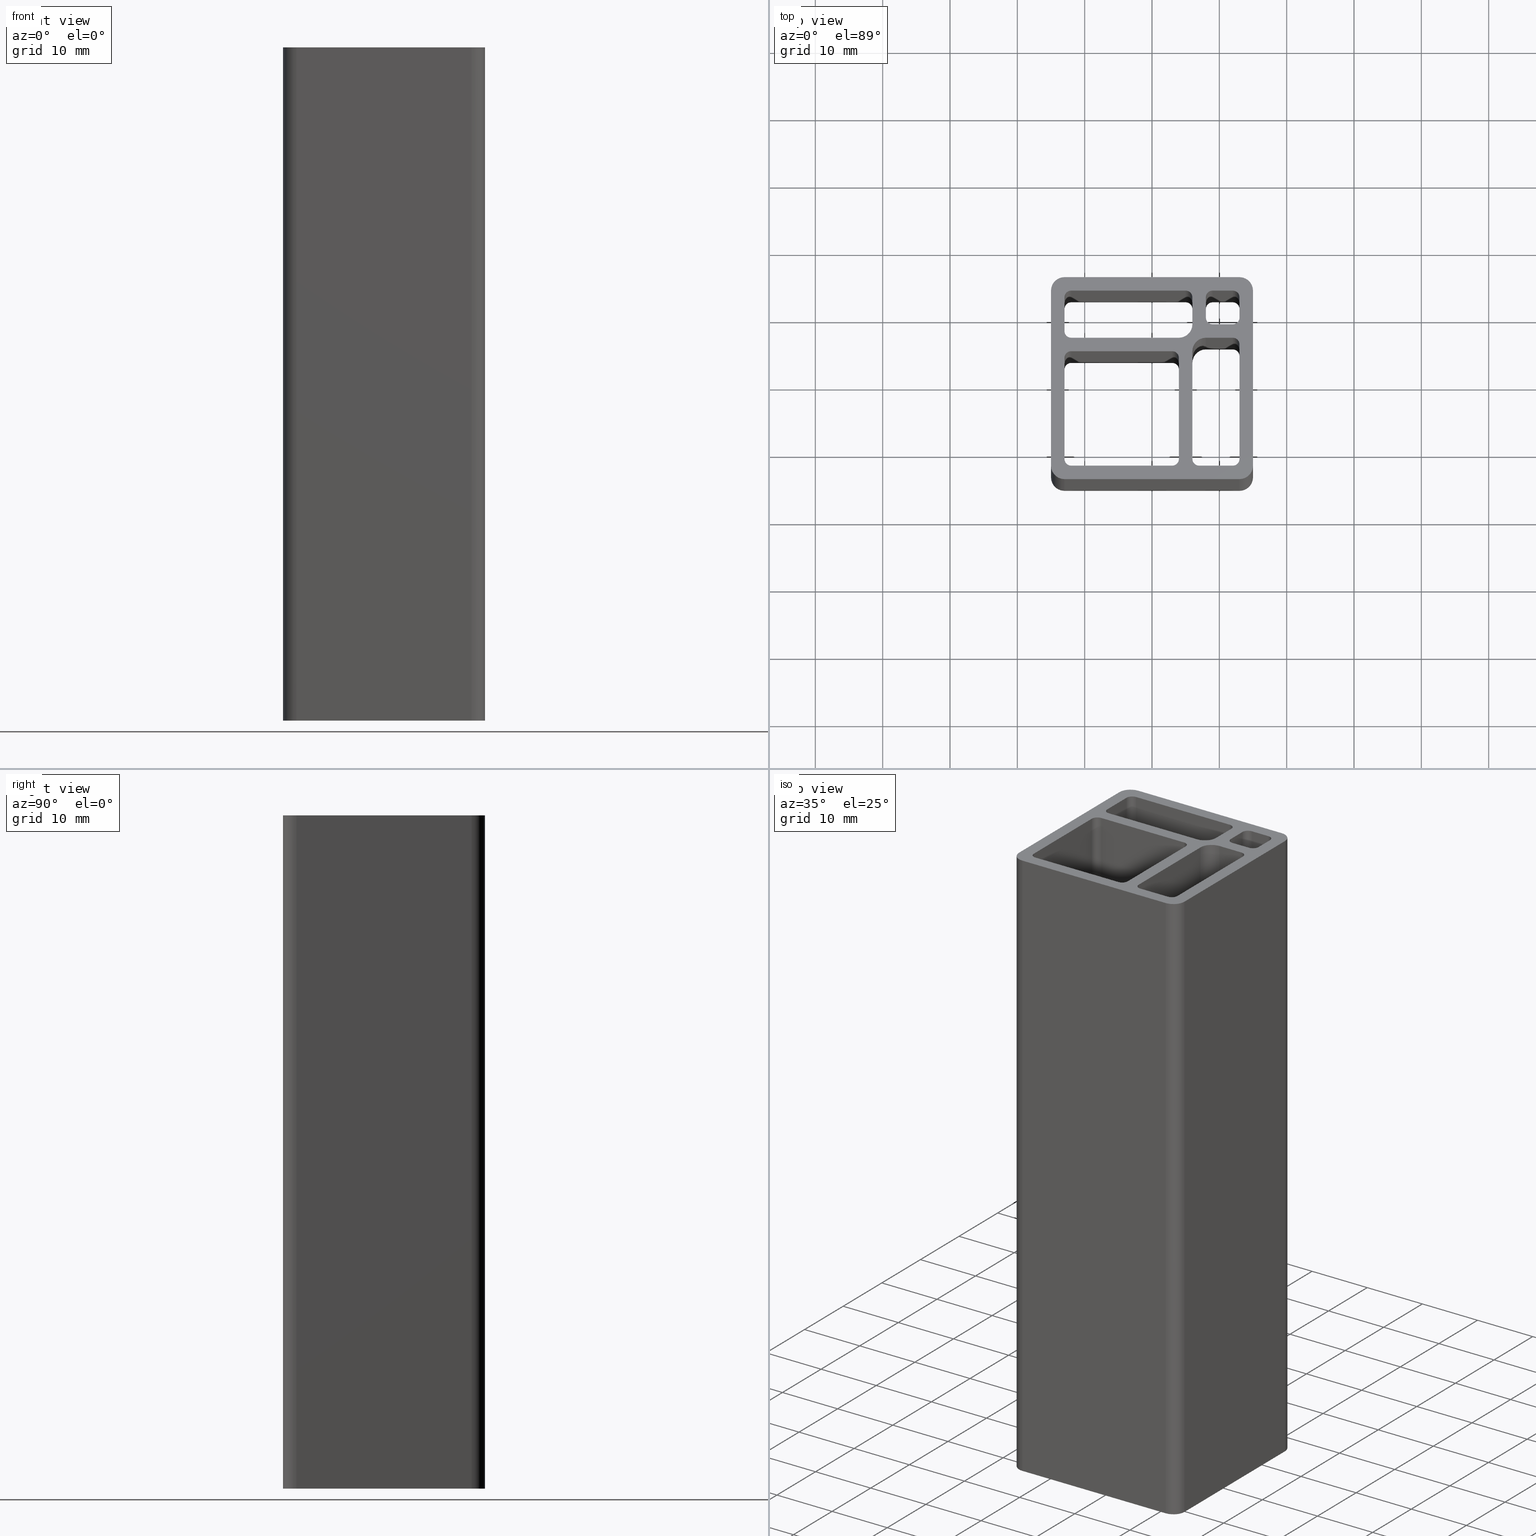
[diagram: canonical four-view strip — front | top / right | iso, engineering-drawing reading convention]
A machine part, canonical four-view strip (front | top / right | iso — engineering-drawing reading convention). The complete STEP part file that produces these views, byte-faithful:
ISO-10303-21;
HEADER;
/* Generated by software containing ST-Developer
 * from STEP Tools, Inc. (www.steptools.com) 
 */

FILE_DESCRIPTION(
/* description */ (''),
/* implementation_level */ '2;1');

FILE_NAME(
/* name */ 
'Q:\\Catalogo\\1_Profili Dierre\\Per Download Web\\Serie 30\\BPRDD0000
064.stp',
/* time_stamp */ '2017-07-11T14:28:42+02:00',
/* author */ ('fzagni'),
/* organization */ (''),
/* preprocessor_version */ 'ST-DEVELOPER v16.1',
/* originating_system */ 'Autodesk Inventor 2016',
/* authorisation */ '');

FILE_SCHEMA (('AUTOMOTIVE_DESIGN { 1 0 10303 214 3 1 1 }'));
ENDSEC;

DATA;
#10=MECHANICAL_DESIGN_GEOMETRIC_PRESENTATION_REPRESENTATION('',(#13),#1415);
#11=SHAPE_REPRESENTATION_RELATIONSHIP('SRR','None',#1424,#12);
#12=ADVANCED_BREP_SHAPE_REPRESENTATION('',(#14),#1414);
#13=STYLED_ITEM('',(#1433),#14);
#14=MANIFOLD_SOLID_BREP('Solido1',#839);
#15=FACE_BOUND('',#166,.T.);
#16=FACE_BOUND('',#167,.T.);
#17=FACE_BOUND('',#168,.T.);
#18=FACE_BOUND('',#169,.T.);
#19=FACE_BOUND('',#171,.T.);
#20=FACE_BOUND('',#172,.T.);
#21=FACE_BOUND('',#173,.T.);
#22=FACE_BOUND('',#174,.T.);
#23=CIRCLE('',#843,1.);
#24=CIRCLE('',#844,1.);
#25=CIRCLE('',#847,1.);
#26=CIRCLE('',#848,1.);
#27=CIRCLE('',#851,1.);
#28=CIRCLE('',#852,1.);
#29=CIRCLE('',#855,2.);
#30=CIRCLE('',#856,2.);
#31=CIRCLE('',#859,1.);
#32=CIRCLE('',#860,1.);
#33=CIRCLE('',#863,1.);
#34=CIRCLE('',#864,1.);
#35=CIRCLE('',#867,1.);
#36=CIRCLE('',#868,1.);
#37=CIRCLE('',#871,1.);
#38=CIRCLE('',#872,1.);
#39=CIRCLE('',#875,1.);
#40=CIRCLE('',#876,1.);
#41=CIRCLE('',#879,1.);
#42=CIRCLE('',#880,1.);
#43=CIRCLE('',#883,1.);
#44=CIRCLE('',#884,1.);
#45=CIRCLE('',#887,2.);
#46=CIRCLE('',#888,2.);
#47=CIRCLE('',#890,1.);
#48=CIRCLE('',#891,1.);
#49=CIRCLE('',#894,1.);
#50=CIRCLE('',#895,1.);
#51=CIRCLE('',#898,1.);
#52=CIRCLE('',#899,1.);
#53=CIRCLE('',#902,1.);
#54=CIRCLE('',#903,1.);
#55=CIRCLE('',#907,2.00000000847673);
#56=CIRCLE('',#908,2.00000000847673);
#57=CIRCLE('',#911,2.00000000847673);
#58=CIRCLE('',#912,2.00000000847673);
#59=CIRCLE('',#915,2.00000000847673);
#60=CIRCLE('',#916,2.00000000847673);
#61=CIRCLE('',#919,2.00000000847673);
#62=CIRCLE('',#920,2.00000000847673);
#63=CYLINDRICAL_SURFACE('',#842,1.);
#64=CYLINDRICAL_SURFACE('',#846,1.);
#65=CYLINDRICAL_SURFACE('',#850,1.);
#66=CYLINDRICAL_SURFACE('',#854,2.);
#67=CYLINDRICAL_SURFACE('',#858,1.);
#68=CYLINDRICAL_SURFACE('',#862,1.);
#69=CYLINDRICAL_SURFACE('',#866,1.);
#70=CYLINDRICAL_SURFACE('',#870,1.);
#71=CYLINDRICAL_SURFACE('',#874,1.);
#72=CYLINDRICAL_SURFACE('',#878,1.);
#73=CYLINDRICAL_SURFACE('',#882,1.);
#74=CYLINDRICAL_SURFACE('',#886,2.);
#75=CYLINDRICAL_SURFACE('',#889,1.);
#76=CYLINDRICAL_SURFACE('',#893,1.);
#77=CYLINDRICAL_SURFACE('',#897,1.);
#78=CYLINDRICAL_SURFACE('',#901,1.);
#79=CYLINDRICAL_SURFACE('',#906,2.00000000847673);
#80=CYLINDRICAL_SURFACE('',#910,2.00000000847673);
#81=CYLINDRICAL_SURFACE('',#914,2.00000000847673);
#82=CYLINDRICAL_SURFACE('',#918,2.00000000847673);
#83=FACE_OUTER_BOUND('',#125,.T.);
#84=FACE_OUTER_BOUND('',#126,.T.);
#85=FACE_OUTER_BOUND('',#127,.T.);
#86=FACE_OUTER_BOUND('',#128,.T.);
#87=FACE_OUTER_BOUND('',#129,.T.);
#88=FACE_OUTER_BOUND('',#130,.T.);
#89=FACE_OUTER_BOUND('',#131,.T.);
#90=FACE_OUTER_BOUND('',#132,.T.);
#91=FACE_OUTER_BOUND('',#133,.T.);
#92=FACE_OUTER_BOUND('',#134,.T.);
#93=FACE_OUTER_BOUND('',#135,.T.);
#94=FACE_OUTER_BOUND('',#136,.T.);
#95=FACE_OUTER_BOUND('',#137,.T.);
#96=FACE_OUTER_BOUND('',#138,.T.);
#97=FACE_OUTER_BOUND('',#139,.T.);
#98=FACE_OUTER_BOUND('',#140,.T.);
#99=FACE_OUTER_BOUND('',#141,.T.);
#100=FACE_OUTER_BOUND('',#142,.T.);
#101=FACE_OUTER_BOUND('',#143,.T.);
#102=FACE_OUTER_BOUND('',#144,.T.);
#103=FACE_OUTER_BOUND('',#145,.T.);
#104=FACE_OUTER_BOUND('',#146,.T.);
#105=FACE_OUTER_BOUND('',#147,.T.);
#106=FACE_OUTER_BOUND('',#148,.T.);
#107=FACE_OUTER_BOUND('',#149,.T.);
#108=FACE_OUTER_BOUND('',#150,.T.);
#109=FACE_OUTER_BOUND('',#151,.T.);
#110=FACE_OUTER_BOUND('',#152,.T.);
#111=FACE_OUTER_BOUND('',#153,.T.);
#112=FACE_OUTER_BOUND('',#154,.T.);
#113=FACE_OUTER_BOUND('',#155,.T.);
#114=FACE_OUTER_BOUND('',#156,.T.);
#115=FACE_OUTER_BOUND('',#157,.T.);
#116=FACE_OUTER_BOUND('',#158,.T.);
#117=FACE_OUTER_BOUND('',#159,.T.);
#118=FACE_OUTER_BOUND('',#160,.T.);
#119=FACE_OUTER_BOUND('',#161,.T.);
#120=FACE_OUTER_BOUND('',#162,.T.);
#121=FACE_OUTER_BOUND('',#163,.T.);
#122=FACE_OUTER_BOUND('',#164,.T.);
#123=FACE_OUTER_BOUND('',#165,.T.);
#124=FACE_OUTER_BOUND('',#170,.T.);
#125=EDGE_LOOP('',(#535,#536,#537,#538));
#126=EDGE_LOOP('',(#539,#540,#541,#542));
#127=EDGE_LOOP('',(#543,#544,#545,#546));
#128=EDGE_LOOP('',(#547,#548,#549,#550));
#129=EDGE_LOOP('',(#551,#552,#553,#554));
#130=EDGE_LOOP('',(#555,#556,#557,#558));
#131=EDGE_LOOP('',(#559,#560,#561,#562));
#132=EDGE_LOOP('',(#563,#564,#565,#566));
#133=EDGE_LOOP('',(#567,#568,#569,#570));
#134=EDGE_LOOP('',(#571,#572,#573,#574));
#135=EDGE_LOOP('',(#575,#576,#577,#578));
#136=EDGE_LOOP('',(#579,#580,#581,#582));
#137=EDGE_LOOP('',(#583,#584,#585,#586));
#138=EDGE_LOOP('',(#587,#588,#589,#590));
#139=EDGE_LOOP('',(#591,#592,#593,#594));
#140=EDGE_LOOP('',(#595,#596,#597,#598));
#141=EDGE_LOOP('',(#599,#600,#601,#602));
#142=EDGE_LOOP('',(#603,#604,#605,#606));
#143=EDGE_LOOP('',(#607,#608,#609,#610));
#144=EDGE_LOOP('',(#611,#612,#613,#614));
#145=EDGE_LOOP('',(#615,#616,#617,#618));
#146=EDGE_LOOP('',(#619,#620,#621,#622));
#147=EDGE_LOOP('',(#623,#624,#625,#626));
#148=EDGE_LOOP('',(#627,#628,#629,#630));
#149=EDGE_LOOP('',(#631,#632,#633,#634));
#150=EDGE_LOOP('',(#635,#636,#637,#638));
#151=EDGE_LOOP('',(#639,#640,#641,#642));
#152=EDGE_LOOP('',(#643,#644,#645,#646));
#153=EDGE_LOOP('',(#647,#648,#649,#650));
#154=EDGE_LOOP('',(#651,#652,#653,#654));
#155=EDGE_LOOP('',(#655,#656,#657,#658));
#156=EDGE_LOOP('',(#659,#660,#661,#662));
#157=EDGE_LOOP('',(#663,#664,#665,#666));
#158=EDGE_LOOP('',(#667,#668,#669,#670));
#159=EDGE_LOOP('',(#671,#672,#673,#674));
#160=EDGE_LOOP('',(#675,#676,#677,#678));
#161=EDGE_LOOP('',(#679,#680,#681,#682));
#162=EDGE_LOOP('',(#683,#684,#685,#686));
#163=EDGE_LOOP('',(#687,#688,#689,#690));
#164=EDGE_LOOP('',(#691,#692,#693,#694));
#165=EDGE_LOOP('',(#695,#696,#697,#698,#699,#700,#701,#702));
#166=EDGE_LOOP('',(#703,#704,#705,#706,#707,#708,#709,#710));
#167=EDGE_LOOP('',(#711,#712,#713,#714,#715,#716,#717,#718));
#168=EDGE_LOOP('',(#719,#720,#721,#722,#723,#724,#725,#726));
#169=EDGE_LOOP('',(#727,#728,#729,#730,#731,#732,#733,#734));
#170=EDGE_LOOP('',(#735,#736,#737,#738,#739,#740,#741,#742));
#171=EDGE_LOOP('',(#743,#744,#745,#746,#747,#748,#749,#750));
#172=EDGE_LOOP('',(#751,#752,#753,#754,#755,#756,#757,#758));
#173=EDGE_LOOP('',(#759,#760,#761,#762,#763,#764,#765,#766));
#174=EDGE_LOOP('',(#767,#768,#769,#770,#771,#772,#773,#774));
#175=LINE('',#1173,#255);
#176=LINE('',#1175,#256);
#177=LINE('',#1177,#257);
#178=LINE('',#1178,#258);
#179=LINE('',#1184,#259);
#180=LINE('',#1187,#260);
#181=LINE('',#1189,#261);
#182=LINE('',#1190,#262);
#183=LINE('',#1196,#263);
#184=LINE('',#1199,#264);
#185=LINE('',#1201,#265);
#186=LINE('',#1202,#266);
#187=LINE('',#1208,#267);
#188=LINE('',#1211,#268);
#189=LINE('',#1213,#269);
#190=LINE('',#1214,#270);
#191=LINE('',#1221,#271);
#192=LINE('',#1223,#272);
#193=LINE('',#1225,#273);
#194=LINE('',#1226,#274);
#195=LINE('',#1231,#275);
#196=LINE('',#1235,#276);
#197=LINE('',#1237,#277);
#198=LINE('',#1238,#278);
#199=LINE('',#1243,#279);
#200=LINE('',#1247,#280);
#201=LINE('',#1249,#281);
#202=LINE('',#1250,#282);
#203=LINE('',#1255,#283);
#204=LINE('',#1259,#284);
#205=LINE('',#1261,#285);
#206=LINE('',#1262,#286);
#207=LINE('',#1269,#287);
#208=LINE('',#1271,#288);
#209=LINE('',#1273,#289);
#210=LINE('',#1274,#290);
#211=LINE('',#1280,#291);
#212=LINE('',#1283,#292);
#213=LINE('',#1285,#293);
#214=LINE('',#1286,#294);
#215=LINE('',#1292,#295);
#216=LINE('',#1295,#296);
#217=LINE('',#1297,#297);
#218=LINE('',#1298,#298);
#219=LINE('',#1304,#299);
#220=LINE('',#1307,#300);
#221=LINE('',#1309,#301);
#222=LINE('',#1310,#302);
#223=LINE('',#1319,#303);
#224=LINE('',#1322,#304);
#225=LINE('',#1325,#305);
#226=LINE('',#1327,#306);
#227=LINE('',#1328,#307);
#228=LINE('',#1333,#308);
#229=LINE('',#1337,#309);
#230=LINE('',#1339,#310);
#231=LINE('',#1340,#311);
#232=LINE('',#1345,#312);
#233=LINE('',#1349,#313);
#234=LINE('',#1351,#314);
#235=LINE('',#1352,#315);
#236=LINE('',#1357,#316);
#237=LINE('',#1360,#317);
#238=LINE('',#1361,#318);
#239=LINE('',#1365,#319);
#240=LINE('',#1367,#320);
#241=LINE('',#1369,#321);
#242=LINE('',#1370,#322);
#243=LINE('',#1375,#323);
#244=LINE('',#1379,#324);
#245=LINE('',#1381,#325);
#246=LINE('',#1382,#326);
#247=LINE('',#1387,#327);
#248=LINE('',#1391,#328);
#249=LINE('',#1393,#329);
#250=LINE('',#1394,#330);
#251=LINE('',#1399,#331);
#252=LINE('',#1403,#332);
#253=LINE('',#1405,#333);
#254=LINE('',#1406,#334);
#255=VECTOR('',#927,4.);
#256=VECTOR('',#928,100.);
#257=VECTOR('',#929,4.);
#258=VECTOR('',#930,100.);
#259=VECTOR('',#937,100.);
#260=VECTOR('',#940,17.);
#261=VECTOR('',#941,17.);
#262=VECTOR('',#942,100.);
#263=VECTOR('',#949,100.);
#264=VECTOR('',#952,5.);
#265=VECTOR('',#953,5.);
#266=VECTOR('',#954,100.);
#267=VECTOR('',#961,100.);
#268=VECTOR('',#964,16.);
#269=VECTOR('',#965,16.);
#270=VECTOR('',#966,100.);
#271=VECTOR('',#975,15.);
#272=VECTOR('',#976,100.);
#273=VECTOR('',#977,15.);
#274=VECTOR('',#978,100.);
#275=VECTOR('',#983,100.);
#276=VECTOR('',#988,15.);
#277=VECTOR('',#989,100.);
#278=VECTOR('',#990,15.);
#279=VECTOR('',#995,100.);
#280=VECTOR('',#1000,15.);
#281=VECTOR('',#1001,100.);
#282=VECTOR('',#1002,15.);
#283=VECTOR('',#1007,100.);
#284=VECTOR('',#1012,15.);
#285=VECTOR('',#1013,100.);
#286=VECTOR('',#1014,15.);
#287=VECTOR('',#1023,16.);
#288=VECTOR('',#1024,100.);
#289=VECTOR('',#1025,16.);
#290=VECTOR('',#1026,100.);
#291=VECTOR('',#1033,100.);
#292=VECTOR('',#1036,5.);
#293=VECTOR('',#1037,5.);
#294=VECTOR('',#1038,100.);
#295=VECTOR('',#1045,100.);
#296=VECTOR('',#1048,17.);
#297=VECTOR('',#1049,17.);
#298=VECTOR('',#1050,100.);
#299=VECTOR('',#1057,100.);
#300=VECTOR('',#1060,4.);
#301=VECTOR('',#1061,4.);
#302=VECTOR('',#1062,100.);
#303=VECTOR('',#1073,100.);
#304=VECTOR('',#1076,100.);
#305=VECTOR('',#1079,3.);
#306=VECTOR('',#1080,100.);
#307=VECTOR('',#1081,3.);
#308=VECTOR('',#1086,100.);
#309=VECTOR('',#1091,3.);
#310=VECTOR('',#1092,100.);
#311=VECTOR('',#1093,3.);
#312=VECTOR('',#1098,100.);
#313=VECTOR('',#1103,2.99999999999999);
#314=VECTOR('',#1104,100.);
#315=VECTOR('',#1105,2.99999999999999);
#316=VECTOR('',#1110,100.);
#317=VECTOR('',#1115,3.);
#318=VECTOR('',#1116,3.);
#319=VECTOR('',#1119,25.9999999832609);
#320=VECTOR('',#1120,100.);
#321=VECTOR('',#1121,25.9999999832609);
#322=VECTOR('',#1122,100.);
#323=VECTOR('',#1127,100.);
#324=VECTOR('',#1132,25.9999999739653);
#325=VECTOR('',#1133,100.);
#326=VECTOR('',#1134,25.9999999739653);
#327=VECTOR('',#1139,100.);
#328=VECTOR('',#1144,25.9999999830465);
#329=VECTOR('',#1145,100.);
#330=VECTOR('',#1146,25.9999999830465);
#331=VECTOR('',#1151,100.);
#332=VECTOR('',#1156,25.9999999741351);
#333=VECTOR('',#1157,100.);
#334=VECTOR('',#1158,25.9999999741351);
#335=VERTEX_POINT('',#1171);
#336=VERTEX_POINT('',#1172);
#337=VERTEX_POINT('',#1174);
#338=VERTEX_POINT('',#1176);
#339=VERTEX_POINT('',#1180);
#340=VERTEX_POINT('',#1182);
#341=VERTEX_POINT('',#1186);
#342=VERTEX_POINT('',#1188);
#343=VERTEX_POINT('',#1192);
#344=VERTEX_POINT('',#1194);
#345=VERTEX_POINT('',#1198);
#346=VERTEX_POINT('',#1200);
#347=VERTEX_POINT('',#1204);
#348=VERTEX_POINT('',#1206);
#349=VERTEX_POINT('',#1210);
#350=VERTEX_POINT('',#1212);
#351=VERTEX_POINT('',#1219);
#352=VERTEX_POINT('',#1220);
#353=VERTEX_POINT('',#1222);
#354=VERTEX_POINT('',#1224);
#355=VERTEX_POINT('',#1228);
#356=VERTEX_POINT('',#1230);
#357=VERTEX_POINT('',#1234);
#358=VERTEX_POINT('',#1236);
#359=VERTEX_POINT('',#1240);
#360=VERTEX_POINT('',#1242);
#361=VERTEX_POINT('',#1246);
#362=VERTEX_POINT('',#1248);
#363=VERTEX_POINT('',#1252);
#364=VERTEX_POINT('',#1254);
#365=VERTEX_POINT('',#1258);
#366=VERTEX_POINT('',#1260);
#367=VERTEX_POINT('',#1267);
#368=VERTEX_POINT('',#1268);
#369=VERTEX_POINT('',#1270);
#370=VERTEX_POINT('',#1272);
#371=VERTEX_POINT('',#1276);
#372=VERTEX_POINT('',#1278);
#373=VERTEX_POINT('',#1282);
#374=VERTEX_POINT('',#1284);
#375=VERTEX_POINT('',#1288);
#376=VERTEX_POINT('',#1290);
#377=VERTEX_POINT('',#1294);
#378=VERTEX_POINT('',#1296);
#379=VERTEX_POINT('',#1300);
#380=VERTEX_POINT('',#1302);
#381=VERTEX_POINT('',#1306);
#382=VERTEX_POINT('',#1308);
#383=VERTEX_POINT('',#1315);
#384=VERTEX_POINT('',#1316);
#385=VERTEX_POINT('',#1318);
#386=VERTEX_POINT('',#1320);
#387=VERTEX_POINT('',#1324);
#388=VERTEX_POINT('',#1326);
#389=VERTEX_POINT('',#1330);
#390=VERTEX_POINT('',#1332);
#391=VERTEX_POINT('',#1336);
#392=VERTEX_POINT('',#1338);
#393=VERTEX_POINT('',#1342);
#394=VERTEX_POINT('',#1344);
#395=VERTEX_POINT('',#1348);
#396=VERTEX_POINT('',#1350);
#397=VERTEX_POINT('',#1354);
#398=VERTEX_POINT('',#1356);
#399=VERTEX_POINT('',#1363);
#400=VERTEX_POINT('',#1364);
#401=VERTEX_POINT('',#1366);
#402=VERTEX_POINT('',#1368);
#403=VERTEX_POINT('',#1372);
#404=VERTEX_POINT('',#1374);
#405=VERTEX_POINT('',#1378);
#406=VERTEX_POINT('',#1380);
#407=VERTEX_POINT('',#1384);
#408=VERTEX_POINT('',#1386);
#409=VERTEX_POINT('',#1390);
#410=VERTEX_POINT('',#1392);
#411=VERTEX_POINT('',#1396);
#412=VERTEX_POINT('',#1398);
#413=VERTEX_POINT('',#1402);
#414=VERTEX_POINT('',#1404);
#415=EDGE_CURVE('',#335,#336,#175,.T.);
#416=EDGE_CURVE('',#337,#335,#176,.T.);
#417=EDGE_CURVE('',#338,#337,#177,.T.);
#418=EDGE_CURVE('',#338,#336,#178,.T.);
#419=EDGE_CURVE('',#336,#339,#23,.T.);
#420=EDGE_CURVE('',#340,#338,#24,.T.);
#421=EDGE_CURVE('',#340,#339,#179,.T.);
#422=EDGE_CURVE('',#339,#341,#180,.T.);
#423=EDGE_CURVE('',#342,#340,#181,.T.);
#424=EDGE_CURVE('',#342,#341,#182,.T.);
#425=EDGE_CURVE('',#341,#343,#25,.T.);
#426=EDGE_CURVE('',#344,#342,#26,.T.);
#427=EDGE_CURVE('',#344,#343,#183,.T.);
#428=EDGE_CURVE('',#343,#345,#184,.T.);
#429=EDGE_CURVE('',#346,#344,#185,.T.);
#430=EDGE_CURVE('',#346,#345,#186,.T.);
#431=EDGE_CURVE('',#345,#347,#27,.T.);
#432=EDGE_CURVE('',#348,#346,#28,.T.);
#433=EDGE_CURVE('',#348,#347,#187,.T.);
#434=EDGE_CURVE('',#347,#349,#188,.T.);
#435=EDGE_CURVE('',#350,#348,#189,.T.);
#436=EDGE_CURVE('',#350,#349,#190,.T.);
#437=EDGE_CURVE('',#349,#335,#29,.T.);
#438=EDGE_CURVE('',#337,#350,#30,.T.);
#439=EDGE_CURVE('',#351,#352,#191,.T.);
#440=EDGE_CURVE('',#353,#351,#192,.T.);
#441=EDGE_CURVE('',#354,#353,#193,.T.);
#442=EDGE_CURVE('',#354,#352,#194,.T.);
#443=EDGE_CURVE('',#355,#351,#31,.T.);
#444=EDGE_CURVE('',#356,#355,#195,.T.);
#445=EDGE_CURVE('',#353,#356,#32,.T.);
#446=EDGE_CURVE('',#357,#355,#196,.T.);
#447=EDGE_CURVE('',#358,#357,#197,.T.);
#448=EDGE_CURVE('',#356,#358,#198,.T.);
#449=EDGE_CURVE('',#359,#357,#33,.T.);
#450=EDGE_CURVE('',#360,#359,#199,.T.);
#451=EDGE_CURVE('',#358,#360,#34,.T.);
#452=EDGE_CURVE('',#361,#359,#200,.T.);
#453=EDGE_CURVE('',#362,#361,#201,.T.);
#454=EDGE_CURVE('',#360,#362,#202,.T.);
#455=EDGE_CURVE('',#363,#361,#35,.T.);
#456=EDGE_CURVE('',#364,#363,#203,.T.);
#457=EDGE_CURVE('',#362,#364,#36,.T.);
#458=EDGE_CURVE('',#365,#363,#204,.T.);
#459=EDGE_CURVE('',#366,#365,#205,.T.);
#460=EDGE_CURVE('',#364,#366,#206,.T.);
#461=EDGE_CURVE('',#352,#365,#37,.T.);
#462=EDGE_CURVE('',#366,#354,#38,.T.);
#463=EDGE_CURVE('',#367,#368,#207,.T.);
#464=EDGE_CURVE('',#369,#367,#208,.T.);
#465=EDGE_CURVE('',#370,#369,#209,.T.);
#466=EDGE_CURVE('',#370,#368,#210,.T.);
#467=EDGE_CURVE('',#368,#371,#39,.T.);
#468=EDGE_CURVE('',#372,#370,#40,.T.);
#469=EDGE_CURVE('',#372,#371,#211,.T.);
#470=EDGE_CURVE('',#371,#373,#212,.T.);
#471=EDGE_CURVE('',#374,#372,#213,.T.);
#472=EDGE_CURVE('',#374,#373,#214,.T.);
#473=EDGE_CURVE('',#373,#375,#41,.T.);
#474=EDGE_CURVE('',#376,#374,#42,.T.);
#475=EDGE_CURVE('',#376,#375,#215,.T.);
#476=EDGE_CURVE('',#375,#377,#216,.T.);
#477=EDGE_CURVE('',#378,#376,#217,.T.);
#478=EDGE_CURVE('',#378,#377,#218,.T.);
#479=EDGE_CURVE('',#377,#379,#43,.T.);
#480=EDGE_CURVE('',#380,#378,#44,.T.);
#481=EDGE_CURVE('',#380,#379,#219,.T.);
#482=EDGE_CURVE('',#379,#381,#220,.T.);
#483=EDGE_CURVE('',#382,#380,#221,.T.);
#484=EDGE_CURVE('',#382,#381,#222,.T.);
#485=EDGE_CURVE('',#381,#367,#45,.T.);
#486=EDGE_CURVE('',#369,#382,#46,.T.);
#487=EDGE_CURVE('',#383,#384,#47,.T.);
#488=EDGE_CURVE('',#385,#383,#223,.T.);
#489=EDGE_CURVE('',#386,#385,#48,.T.);
#490=EDGE_CURVE('',#386,#384,#224,.T.);
#491=EDGE_CURVE('',#387,#383,#225,.T.);
#492=EDGE_CURVE('',#388,#387,#226,.T.);
#493=EDGE_CURVE('',#385,#388,#227,.T.);
#494=EDGE_CURVE('',#389,#387,#49,.T.);
#495=EDGE_CURVE('',#390,#389,#228,.T.);
#496=EDGE_CURVE('',#388,#390,#50,.T.);
#497=EDGE_CURVE('',#391,#389,#229,.T.);
#498=EDGE_CURVE('',#392,#391,#230,.T.);
#499=EDGE_CURVE('',#390,#392,#231,.T.);
#500=EDGE_CURVE('',#393,#391,#51,.T.);
#501=EDGE_CURVE('',#394,#393,#232,.T.);
#502=EDGE_CURVE('',#392,#394,#52,.T.);
#503=EDGE_CURVE('',#395,#393,#233,.T.);
#504=EDGE_CURVE('',#396,#395,#234,.T.);
#505=EDGE_CURVE('',#394,#396,#235,.T.);
#506=EDGE_CURVE('',#397,#395,#53,.T.);
#507=EDGE_CURVE('',#398,#397,#236,.T.);
#508=EDGE_CURVE('',#396,#398,#54,.T.);
#509=EDGE_CURVE('',#384,#397,#237,.T.);
#510=EDGE_CURVE('',#398,#386,#238,.T.);
#511=EDGE_CURVE('',#399,#400,#239,.T.);
#512=EDGE_CURVE('',#401,#400,#240,.T.);
#513=EDGE_CURVE('',#402,#401,#241,.T.);
#514=EDGE_CURVE('',#402,#399,#242,.T.);
#515=EDGE_CURVE('',#400,#403,#55,.T.);
#516=EDGE_CURVE('',#404,#403,#243,.T.);
#517=EDGE_CURVE('',#401,#404,#56,.T.);
#518=EDGE_CURVE('',#403,#405,#244,.T.);
#519=EDGE_CURVE('',#406,#405,#245,.T.);
#520=EDGE_CURVE('',#404,#406,#246,.T.);
#521=EDGE_CURVE('',#405,#407,#57,.T.);
#522=EDGE_CURVE('',#408,#407,#247,.T.);
#523=EDGE_CURVE('',#406,#408,#58,.T.);
#524=EDGE_CURVE('',#407,#409,#248,.T.);
#525=EDGE_CURVE('',#410,#409,#249,.T.);
#526=EDGE_CURVE('',#408,#410,#250,.T.);
#527=EDGE_CURVE('',#409,#411,#59,.T.);
#528=EDGE_CURVE('',#412,#411,#251,.T.);
#529=EDGE_CURVE('',#410,#412,#60,.T.);
#530=EDGE_CURVE('',#411,#413,#252,.T.);
#531=EDGE_CURVE('',#414,#413,#253,.T.);
#532=EDGE_CURVE('',#412,#414,#254,.T.);
#533=EDGE_CURVE('',#413,#399,#61,.T.);
#534=EDGE_CURVE('',#414,#402,#62,.T.);
#535=ORIENTED_EDGE('',*,*,#415,.F.);
#536=ORIENTED_EDGE('',*,*,#416,.F.);
#537=ORIENTED_EDGE('',*,*,#417,.F.);
#538=ORIENTED_EDGE('',*,*,#418,.T.);
#539=ORIENTED_EDGE('',*,*,#419,.F.);
#540=ORIENTED_EDGE('',*,*,#418,.F.);
#541=ORIENTED_EDGE('',*,*,#420,.F.);
#542=ORIENTED_EDGE('',*,*,#421,.T.);
#543=ORIENTED_EDGE('',*,*,#422,.F.);
#544=ORIENTED_EDGE('',*,*,#421,.F.);
#545=ORIENTED_EDGE('',*,*,#423,.F.);
#546=ORIENTED_EDGE('',*,*,#424,.T.);
#547=ORIENTED_EDGE('',*,*,#425,.F.);
#548=ORIENTED_EDGE('',*,*,#424,.F.);
#549=ORIENTED_EDGE('',*,*,#426,.F.);
#550=ORIENTED_EDGE('',*,*,#427,.T.);
#551=ORIENTED_EDGE('',*,*,#428,.F.);
#552=ORIENTED_EDGE('',*,*,#427,.F.);
#553=ORIENTED_EDGE('',*,*,#429,.F.);
#554=ORIENTED_EDGE('',*,*,#430,.T.);
#555=ORIENTED_EDGE('',*,*,#431,.F.);
#556=ORIENTED_EDGE('',*,*,#430,.F.);
#557=ORIENTED_EDGE('',*,*,#432,.F.);
#558=ORIENTED_EDGE('',*,*,#433,.T.);
#559=ORIENTED_EDGE('',*,*,#434,.F.);
#560=ORIENTED_EDGE('',*,*,#433,.F.);
#561=ORIENTED_EDGE('',*,*,#435,.F.);
#562=ORIENTED_EDGE('',*,*,#436,.T.);
#563=ORIENTED_EDGE('',*,*,#437,.F.);
#564=ORIENTED_EDGE('',*,*,#436,.F.);
#565=ORIENTED_EDGE('',*,*,#438,.F.);
#566=ORIENTED_EDGE('',*,*,#416,.T.);
#567=ORIENTED_EDGE('',*,*,#439,.F.);
#568=ORIENTED_EDGE('',*,*,#440,.F.);
#569=ORIENTED_EDGE('',*,*,#441,.F.);
#570=ORIENTED_EDGE('',*,*,#442,.T.);
#571=ORIENTED_EDGE('',*,*,#443,.F.);
#572=ORIENTED_EDGE('',*,*,#444,.F.);
#573=ORIENTED_EDGE('',*,*,#445,.F.);
#574=ORIENTED_EDGE('',*,*,#440,.T.);
#575=ORIENTED_EDGE('',*,*,#446,.F.);
#576=ORIENTED_EDGE('',*,*,#447,.F.);
#577=ORIENTED_EDGE('',*,*,#448,.F.);
#578=ORIENTED_EDGE('',*,*,#444,.T.);
#579=ORIENTED_EDGE('',*,*,#449,.F.);
#580=ORIENTED_EDGE('',*,*,#450,.F.);
#581=ORIENTED_EDGE('',*,*,#451,.F.);
#582=ORIENTED_EDGE('',*,*,#447,.T.);
#583=ORIENTED_EDGE('',*,*,#452,.F.);
#584=ORIENTED_EDGE('',*,*,#453,.F.);
#585=ORIENTED_EDGE('',*,*,#454,.F.);
#586=ORIENTED_EDGE('',*,*,#450,.T.);
#587=ORIENTED_EDGE('',*,*,#455,.F.);
#588=ORIENTED_EDGE('',*,*,#456,.F.);
#589=ORIENTED_EDGE('',*,*,#457,.F.);
#590=ORIENTED_EDGE('',*,*,#453,.T.);
#591=ORIENTED_EDGE('',*,*,#458,.F.);
#592=ORIENTED_EDGE('',*,*,#459,.F.);
#593=ORIENTED_EDGE('',*,*,#460,.F.);
#594=ORIENTED_EDGE('',*,*,#456,.T.);
#595=ORIENTED_EDGE('',*,*,#461,.F.);
#596=ORIENTED_EDGE('',*,*,#442,.F.);
#597=ORIENTED_EDGE('',*,*,#462,.F.);
#598=ORIENTED_EDGE('',*,*,#459,.T.);
#599=ORIENTED_EDGE('',*,*,#463,.F.);
#600=ORIENTED_EDGE('',*,*,#464,.F.);
#601=ORIENTED_EDGE('',*,*,#465,.F.);
#602=ORIENTED_EDGE('',*,*,#466,.T.);
#603=ORIENTED_EDGE('',*,*,#467,.F.);
#604=ORIENTED_EDGE('',*,*,#466,.F.);
#605=ORIENTED_EDGE('',*,*,#468,.F.);
#606=ORIENTED_EDGE('',*,*,#469,.T.);
#607=ORIENTED_EDGE('',*,*,#470,.F.);
#608=ORIENTED_EDGE('',*,*,#469,.F.);
#609=ORIENTED_EDGE('',*,*,#471,.F.);
#610=ORIENTED_EDGE('',*,*,#472,.T.);
#611=ORIENTED_EDGE('',*,*,#473,.F.);
#612=ORIENTED_EDGE('',*,*,#472,.F.);
#613=ORIENTED_EDGE('',*,*,#474,.F.);
#614=ORIENTED_EDGE('',*,*,#475,.T.);
#615=ORIENTED_EDGE('',*,*,#476,.F.);
#616=ORIENTED_EDGE('',*,*,#475,.F.);
#617=ORIENTED_EDGE('',*,*,#477,.F.);
#618=ORIENTED_EDGE('',*,*,#478,.T.);
#619=ORIENTED_EDGE('',*,*,#479,.F.);
#620=ORIENTED_EDGE('',*,*,#478,.F.);
#621=ORIENTED_EDGE('',*,*,#480,.F.);
#622=ORIENTED_EDGE('',*,*,#481,.T.);
#623=ORIENTED_EDGE('',*,*,#482,.F.);
#624=ORIENTED_EDGE('',*,*,#481,.F.);
#625=ORIENTED_EDGE('',*,*,#483,.F.);
#626=ORIENTED_EDGE('',*,*,#484,.T.);
#627=ORIENTED_EDGE('',*,*,#485,.F.);
#628=ORIENTED_EDGE('',*,*,#484,.F.);
#629=ORIENTED_EDGE('',*,*,#486,.F.);
#630=ORIENTED_EDGE('',*,*,#464,.T.);
#631=ORIENTED_EDGE('',*,*,#487,.F.);
#632=ORIENTED_EDGE('',*,*,#488,.F.);
#633=ORIENTED_EDGE('',*,*,#489,.F.);
#634=ORIENTED_EDGE('',*,*,#490,.T.);
#635=ORIENTED_EDGE('',*,*,#491,.F.);
#636=ORIENTED_EDGE('',*,*,#492,.F.);
#637=ORIENTED_EDGE('',*,*,#493,.F.);
#638=ORIENTED_EDGE('',*,*,#488,.T.);
#639=ORIENTED_EDGE('',*,*,#494,.F.);
#640=ORIENTED_EDGE('',*,*,#495,.F.);
#641=ORIENTED_EDGE('',*,*,#496,.F.);
#642=ORIENTED_EDGE('',*,*,#492,.T.);
#643=ORIENTED_EDGE('',*,*,#497,.F.);
#644=ORIENTED_EDGE('',*,*,#498,.F.);
#645=ORIENTED_EDGE('',*,*,#499,.F.);
#646=ORIENTED_EDGE('',*,*,#495,.T.);
#647=ORIENTED_EDGE('',*,*,#500,.F.);
#648=ORIENTED_EDGE('',*,*,#501,.F.);
#649=ORIENTED_EDGE('',*,*,#502,.F.);
#650=ORIENTED_EDGE('',*,*,#498,.T.);
#651=ORIENTED_EDGE('',*,*,#503,.F.);
#652=ORIENTED_EDGE('',*,*,#504,.F.);
#653=ORIENTED_EDGE('',*,*,#505,.F.);
#654=ORIENTED_EDGE('',*,*,#501,.T.);
#655=ORIENTED_EDGE('',*,*,#506,.F.);
#656=ORIENTED_EDGE('',*,*,#507,.F.);
#657=ORIENTED_EDGE('',*,*,#508,.F.);
#658=ORIENTED_EDGE('',*,*,#504,.T.);
#659=ORIENTED_EDGE('',*,*,#509,.F.);
#660=ORIENTED_EDGE('',*,*,#490,.F.);
#661=ORIENTED_EDGE('',*,*,#510,.F.);
#662=ORIENTED_EDGE('',*,*,#507,.T.);
#663=ORIENTED_EDGE('',*,*,#511,.T.);
#664=ORIENTED_EDGE('',*,*,#512,.F.);
#665=ORIENTED_EDGE('',*,*,#513,.F.);
#666=ORIENTED_EDGE('',*,*,#514,.T.);
#667=ORIENTED_EDGE('',*,*,#515,.T.);
#668=ORIENTED_EDGE('',*,*,#516,.F.);
#669=ORIENTED_EDGE('',*,*,#517,.F.);
#670=ORIENTED_EDGE('',*,*,#512,.T.);
#671=ORIENTED_EDGE('',*,*,#518,.T.);
#672=ORIENTED_EDGE('',*,*,#519,.F.);
#673=ORIENTED_EDGE('',*,*,#520,.F.);
#674=ORIENTED_EDGE('',*,*,#516,.T.);
#675=ORIENTED_EDGE('',*,*,#521,.T.);
#676=ORIENTED_EDGE('',*,*,#522,.F.);
#677=ORIENTED_EDGE('',*,*,#523,.F.);
#678=ORIENTED_EDGE('',*,*,#519,.T.);
#679=ORIENTED_EDGE('',*,*,#524,.T.);
#680=ORIENTED_EDGE('',*,*,#525,.F.);
#681=ORIENTED_EDGE('',*,*,#526,.F.);
#682=ORIENTED_EDGE('',*,*,#522,.T.);
#683=ORIENTED_EDGE('',*,*,#527,.T.);
#684=ORIENTED_EDGE('',*,*,#528,.F.);
#685=ORIENTED_EDGE('',*,*,#529,.F.);
#686=ORIENTED_EDGE('',*,*,#525,.T.);
#687=ORIENTED_EDGE('',*,*,#530,.T.);
#688=ORIENTED_EDGE('',*,*,#531,.F.);
#689=ORIENTED_EDGE('',*,*,#532,.F.);
#690=ORIENTED_EDGE('',*,*,#528,.T.);
#691=ORIENTED_EDGE('',*,*,#533,.T.);
#692=ORIENTED_EDGE('',*,*,#514,.F.);
#693=ORIENTED_EDGE('',*,*,#534,.F.);
#694=ORIENTED_EDGE('',*,*,#531,.T.);
#695=ORIENTED_EDGE('',*,*,#526,.T.);
#696=ORIENTED_EDGE('',*,*,#529,.T.);
#697=ORIENTED_EDGE('',*,*,#532,.T.);
#698=ORIENTED_EDGE('',*,*,#534,.T.);
#699=ORIENTED_EDGE('',*,*,#513,.T.);
#700=ORIENTED_EDGE('',*,*,#517,.T.);
#701=ORIENTED_EDGE('',*,*,#520,.T.);
#702=ORIENTED_EDGE('',*,*,#523,.T.);
#703=ORIENTED_EDGE('',*,*,#417,.T.);
#704=ORIENTED_EDGE('',*,*,#438,.T.);
#705=ORIENTED_EDGE('',*,*,#435,.T.);
#706=ORIENTED_EDGE('',*,*,#432,.T.);
#707=ORIENTED_EDGE('',*,*,#429,.T.);
#708=ORIENTED_EDGE('',*,*,#426,.T.);
#709=ORIENTED_EDGE('',*,*,#423,.T.);
#710=ORIENTED_EDGE('',*,*,#420,.T.);
#711=ORIENTED_EDGE('',*,*,#441,.T.);
#712=ORIENTED_EDGE('',*,*,#445,.T.);
#713=ORIENTED_EDGE('',*,*,#448,.T.);
#714=ORIENTED_EDGE('',*,*,#451,.T.);
#715=ORIENTED_EDGE('',*,*,#454,.T.);
#716=ORIENTED_EDGE('',*,*,#457,.T.);
#717=ORIENTED_EDGE('',*,*,#460,.T.);
#718=ORIENTED_EDGE('',*,*,#462,.T.);
#719=ORIENTED_EDGE('',*,*,#465,.T.);
#720=ORIENTED_EDGE('',*,*,#486,.T.);
#721=ORIENTED_EDGE('',*,*,#483,.T.);
#722=ORIENTED_EDGE('',*,*,#480,.T.);
#723=ORIENTED_EDGE('',*,*,#477,.T.);
#724=ORIENTED_EDGE('',*,*,#474,.T.);
#725=ORIENTED_EDGE('',*,*,#471,.T.);
#726=ORIENTED_EDGE('',*,*,#468,.T.);
#727=ORIENTED_EDGE('',*,*,#489,.T.);
#728=ORIENTED_EDGE('',*,*,#493,.T.);
#729=ORIENTED_EDGE('',*,*,#496,.T.);
#730=ORIENTED_EDGE('',*,*,#499,.T.);
#731=ORIENTED_EDGE('',*,*,#502,.T.);
#732=ORIENTED_EDGE('',*,*,#505,.T.);
#733=ORIENTED_EDGE('',*,*,#508,.T.);
#734=ORIENTED_EDGE('',*,*,#510,.T.);
#735=ORIENTED_EDGE('',*,*,#524,.F.);
#736=ORIENTED_EDGE('',*,*,#521,.F.);
#737=ORIENTED_EDGE('',*,*,#518,.F.);
#738=ORIENTED_EDGE('',*,*,#515,.F.);
#739=ORIENTED_EDGE('',*,*,#511,.F.);
#740=ORIENTED_EDGE('',*,*,#533,.F.);
#741=ORIENTED_EDGE('',*,*,#530,.F.);
#742=ORIENTED_EDGE('',*,*,#527,.F.);
#743=ORIENTED_EDGE('',*,*,#415,.T.);
#744=ORIENTED_EDGE('',*,*,#419,.T.);
#745=ORIENTED_EDGE('',*,*,#422,.T.);
#746=ORIENTED_EDGE('',*,*,#425,.T.);
#747=ORIENTED_EDGE('',*,*,#428,.T.);
#748=ORIENTED_EDGE('',*,*,#431,.T.);
#749=ORIENTED_EDGE('',*,*,#434,.T.);
#750=ORIENTED_EDGE('',*,*,#437,.T.);
#751=ORIENTED_EDGE('',*,*,#439,.T.);
#752=ORIENTED_EDGE('',*,*,#461,.T.);
#753=ORIENTED_EDGE('',*,*,#458,.T.);
#754=ORIENTED_EDGE('',*,*,#455,.T.);
#755=ORIENTED_EDGE('',*,*,#452,.T.);
#756=ORIENTED_EDGE('',*,*,#449,.T.);
#757=ORIENTED_EDGE('',*,*,#446,.T.);
#758=ORIENTED_EDGE('',*,*,#443,.T.);
#759=ORIENTED_EDGE('',*,*,#463,.T.);
#760=ORIENTED_EDGE('',*,*,#467,.T.);
#761=ORIENTED_EDGE('',*,*,#470,.T.);
#762=ORIENTED_EDGE('',*,*,#473,.T.);
#763=ORIENTED_EDGE('',*,*,#476,.T.);
#764=ORIENTED_EDGE('',*,*,#479,.T.);
#765=ORIENTED_EDGE('',*,*,#482,.T.);
#766=ORIENTED_EDGE('',*,*,#485,.T.);
#767=ORIENTED_EDGE('',*,*,#487,.T.);
#768=ORIENTED_EDGE('',*,*,#509,.T.);
#769=ORIENTED_EDGE('',*,*,#506,.T.);
#770=ORIENTED_EDGE('',*,*,#503,.T.);
#771=ORIENTED_EDGE('',*,*,#500,.T.);
#772=ORIENTED_EDGE('',*,*,#497,.T.);
#773=ORIENTED_EDGE('',*,*,#494,.T.);
#774=ORIENTED_EDGE('',*,*,#491,.T.);
#775=PLANE('',#841);
#776=PLANE('',#845);
#777=PLANE('',#849);
#778=PLANE('',#853);
#779=PLANE('',#857);
#780=PLANE('',#861);
#781=PLANE('',#865);
#782=PLANE('',#869);
#783=PLANE('',#873);
#784=PLANE('',#877);
#785=PLANE('',#881);
#786=PLANE('',#885);
#787=PLANE('',#892);
#788=PLANE('',#896);
#789=PLANE('',#900);
#790=PLANE('',#904);
#791=PLANE('',#905);
#792=PLANE('',#909);
#793=PLANE('',#913);
#794=PLANE('',#917);
#795=PLANE('',#921);
#796=PLANE('',#922);
#797=ADVANCED_FACE('',(#83),#775,.F.);
#798=ADVANCED_FACE('',(#84),#63,.F.);
#799=ADVANCED_FACE('',(#85),#776,.F.);
#800=ADVANCED_FACE('',(#86),#64,.F.);
#801=ADVANCED_FACE('',(#87),#777,.F.);
#802=ADVANCED_FACE('',(#88),#65,.F.);
#803=ADVANCED_FACE('',(#89),#778,.F.);
#804=ADVANCED_FACE('',(#90),#66,.F.);
#805=ADVANCED_FACE('',(#91),#779,.F.);
#806=ADVANCED_FACE('',(#92),#67,.F.);
#807=ADVANCED_FACE('',(#93),#780,.F.);
#808=ADVANCED_FACE('',(#94),#68,.F.);
#809=ADVANCED_FACE('',(#95),#781,.F.);
#810=ADVANCED_FACE('',(#96),#69,.F.);
#811=ADVANCED_FACE('',(#97),#782,.F.);
#812=ADVANCED_FACE('',(#98),#70,.F.);
#813=ADVANCED_FACE('',(#99),#783,.F.);
#814=ADVANCED_FACE('',(#100),#71,.F.);
#815=ADVANCED_FACE('',(#101),#784,.F.);
#816=ADVANCED_FACE('',(#102),#72,.F.);
#817=ADVANCED_FACE('',(#103),#785,.F.);
#818=ADVANCED_FACE('',(#104),#73,.F.);
#819=ADVANCED_FACE('',(#105),#786,.F.);
#820=ADVANCED_FACE('',(#106),#74,.F.);
#821=ADVANCED_FACE('',(#107),#75,.F.);
#822=ADVANCED_FACE('',(#108),#787,.F.);
#823=ADVANCED_FACE('',(#109),#76,.F.);
#824=ADVANCED_FACE('',(#110),#788,.F.);
#825=ADVANCED_FACE('',(#111),#77,.F.);
#826=ADVANCED_FACE('',(#112),#789,.F.);
#827=ADVANCED_FACE('',(#113),#78,.F.);
#828=ADVANCED_FACE('',(#114),#790,.F.);
#829=ADVANCED_FACE('',(#115),#791,.T.);
#830=ADVANCED_FACE('',(#116),#79,.T.);
#831=ADVANCED_FACE('',(#117),#792,.T.);
#832=ADVANCED_FACE('',(#118),#80,.T.);
#833=ADVANCED_FACE('',(#119),#793,.T.);
#834=ADVANCED_FACE('',(#120),#81,.T.);
#835=ADVANCED_FACE('',(#121),#794,.T.);
#836=ADVANCED_FACE('',(#122),#82,.T.);
#837=ADVANCED_FACE('',(#123,#15,#16,#17,#18),#795,.F.);
#838=ADVANCED_FACE('',(#124,#19,#20,#21,#22),#796,.T.);
#839=CLOSED_SHELL('',(#797,#798,#799,#800,#801,#802,#803,#804,#805,#806,
#807,#808,#809,#810,#811,#812,#813,#814,#815,#816,#817,#818,#819,#820,#821,
#822,#823,#824,#825,#826,#827,#828,#829,#830,#831,#832,#833,#834,#835,#836,
#837,#838));
#840=AXIS2_PLACEMENT_3D('placement',#1169,#923,#924);
#841=AXIS2_PLACEMENT_3D('',#1170,#925,#926);
#842=AXIS2_PLACEMENT_3D('',#1179,#931,#932);
#843=AXIS2_PLACEMENT_3D('',#1181,#933,#934);
#844=AXIS2_PLACEMENT_3D('',#1183,#935,#936);
#845=AXIS2_PLACEMENT_3D('',#1185,#938,#939);
#846=AXIS2_PLACEMENT_3D('',#1191,#943,#944);
#847=AXIS2_PLACEMENT_3D('',#1193,#945,#946);
#848=AXIS2_PLACEMENT_3D('',#1195,#947,#948);
#849=AXIS2_PLACEMENT_3D('',#1197,#950,#951);
#850=AXIS2_PLACEMENT_3D('',#1203,#955,#956);
#851=AXIS2_PLACEMENT_3D('',#1205,#957,#958);
#852=AXIS2_PLACEMENT_3D('',#1207,#959,#960);
#853=AXIS2_PLACEMENT_3D('',#1209,#962,#963);
#854=AXIS2_PLACEMENT_3D('',#1215,#967,#968);
#855=AXIS2_PLACEMENT_3D('',#1216,#969,#970);
#856=AXIS2_PLACEMENT_3D('',#1217,#971,#972);
#857=AXIS2_PLACEMENT_3D('',#1218,#973,#974);
#858=AXIS2_PLACEMENT_3D('',#1227,#979,#980);
#859=AXIS2_PLACEMENT_3D('',#1229,#981,#982);
#860=AXIS2_PLACEMENT_3D('',#1232,#984,#985);
#861=AXIS2_PLACEMENT_3D('',#1233,#986,#987);
#862=AXIS2_PLACEMENT_3D('',#1239,#991,#992);
#863=AXIS2_PLACEMENT_3D('',#1241,#993,#994);
#864=AXIS2_PLACEMENT_3D('',#1244,#996,#997);
#865=AXIS2_PLACEMENT_3D('',#1245,#998,#999);
#866=AXIS2_PLACEMENT_3D('',#1251,#1003,#1004);
#867=AXIS2_PLACEMENT_3D('',#1253,#1005,#1006);
#868=AXIS2_PLACEMENT_3D('',#1256,#1008,#1009);
#869=AXIS2_PLACEMENT_3D('',#1257,#1010,#1011);
#870=AXIS2_PLACEMENT_3D('',#1263,#1015,#1016);
#871=AXIS2_PLACEMENT_3D('',#1264,#1017,#1018);
#872=AXIS2_PLACEMENT_3D('',#1265,#1019,#1020);
#873=AXIS2_PLACEMENT_3D('',#1266,#1021,#1022);
#874=AXIS2_PLACEMENT_3D('',#1275,#1027,#1028);
#875=AXIS2_PLACEMENT_3D('',#1277,#1029,#1030);
#876=AXIS2_PLACEMENT_3D('',#1279,#1031,#1032);
#877=AXIS2_PLACEMENT_3D('',#1281,#1034,#1035);
#878=AXIS2_PLACEMENT_3D('',#1287,#1039,#1040);
#879=AXIS2_PLACEMENT_3D('',#1289,#1041,#1042);
#880=AXIS2_PLACEMENT_3D('',#1291,#1043,#1044);
#881=AXIS2_PLACEMENT_3D('',#1293,#1046,#1047);
#882=AXIS2_PLACEMENT_3D('',#1299,#1051,#1052);
#883=AXIS2_PLACEMENT_3D('',#1301,#1053,#1054);
#884=AXIS2_PLACEMENT_3D('',#1303,#1055,#1056);
#885=AXIS2_PLACEMENT_3D('',#1305,#1058,#1059);
#886=AXIS2_PLACEMENT_3D('',#1311,#1063,#1064);
#887=AXIS2_PLACEMENT_3D('',#1312,#1065,#1066);
#888=AXIS2_PLACEMENT_3D('',#1313,#1067,#1068);
#889=AXIS2_PLACEMENT_3D('',#1314,#1069,#1070);
#890=AXIS2_PLACEMENT_3D('',#1317,#1071,#1072);
#891=AXIS2_PLACEMENT_3D('',#1321,#1074,#1075);
#892=AXIS2_PLACEMENT_3D('',#1323,#1077,#1078);
#893=AXIS2_PLACEMENT_3D('',#1329,#1082,#1083);
#894=AXIS2_PLACEMENT_3D('',#1331,#1084,#1085);
#895=AXIS2_PLACEMENT_3D('',#1334,#1087,#1088);
#896=AXIS2_PLACEMENT_3D('',#1335,#1089,#1090);
#897=AXIS2_PLACEMENT_3D('',#1341,#1094,#1095);
#898=AXIS2_PLACEMENT_3D('',#1343,#1096,#1097);
#899=AXIS2_PLACEMENT_3D('',#1346,#1099,#1100);
#900=AXIS2_PLACEMENT_3D('',#1347,#1101,#1102);
#901=AXIS2_PLACEMENT_3D('',#1353,#1106,#1107);
#902=AXIS2_PLACEMENT_3D('',#1355,#1108,#1109);
#903=AXIS2_PLACEMENT_3D('',#1358,#1111,#1112);
#904=AXIS2_PLACEMENT_3D('',#1359,#1113,#1114);
#905=AXIS2_PLACEMENT_3D('',#1362,#1117,#1118);
#906=AXIS2_PLACEMENT_3D('',#1371,#1123,#1124);
#907=AXIS2_PLACEMENT_3D('',#1373,#1125,#1126);
#908=AXIS2_PLACEMENT_3D('',#1376,#1128,#1129);
#909=AXIS2_PLACEMENT_3D('',#1377,#1130,#1131);
#910=AXIS2_PLACEMENT_3D('',#1383,#1135,#1136);
#911=AXIS2_PLACEMENT_3D('',#1385,#1137,#1138);
#912=AXIS2_PLACEMENT_3D('',#1388,#1140,#1141);
#913=AXIS2_PLACEMENT_3D('',#1389,#1142,#1143);
#914=AXIS2_PLACEMENT_3D('',#1395,#1147,#1148);
#915=AXIS2_PLACEMENT_3D('',#1397,#1149,#1150);
#916=AXIS2_PLACEMENT_3D('',#1400,#1152,#1153);
#917=AXIS2_PLACEMENT_3D('',#1401,#1154,#1155);
#918=AXIS2_PLACEMENT_3D('',#1407,#1159,#1160);
#919=AXIS2_PLACEMENT_3D('',#1408,#1161,#1162);
#920=AXIS2_PLACEMENT_3D('',#1409,#1163,#1164);
#921=AXIS2_PLACEMENT_3D('',#1410,#1165,#1166);
#922=AXIS2_PLACEMENT_3D('',#1411,#1167,#1168);
#923=DIRECTION('axis',(0.,0.,1.));
#924=DIRECTION('refdir',(1.,0.,0.));
#925=DIRECTION('center_axis',(-2.77555756156289E-16,1.,0.));
#926=DIRECTION('ref_axis',(-1.,-2.66453525910038E-16,0.));
#927=DIRECTION('',(1.,2.77555756156289E-16,0.));
#928=DIRECTION('',(0.,0.,1.));
#929=DIRECTION('',(-1.,-2.77555756156289E-16,0.));
#930=DIRECTION('',(0.,0.,1.));
#931=DIRECTION('center_axis',(0.,0.,1.));
#932=DIRECTION('ref_axis',(1.,0.,0.));
#933=DIRECTION('center_axis',(0.,0.,-1.));
#934=DIRECTION('ref_axis',(1.,0.,0.));
#935=DIRECTION('center_axis',(0.,0.,1.));
#936=DIRECTION('ref_axis',(1.,0.,0.));
#937=DIRECTION('',(0.,0.,1.));
#938=DIRECTION('center_axis',(1.,5.2245789394125E-16,0.));
#939=DIRECTION('ref_axis',(-5.32907051820075E-16,1.,0.));
#940=DIRECTION('',(5.2245789394125E-16,-1.,0.));
#941=DIRECTION('',(-5.2245789394125E-16,1.,0.));
#942=DIRECTION('',(0.,0.,1.));
#943=DIRECTION('center_axis',(0.,0.,1.));
#944=DIRECTION('ref_axis',(0.,-1.,0.));
#945=DIRECTION('center_axis',(0.,0.,-1.));
#946=DIRECTION('ref_axis',(0.,-1.,0.));
#947=DIRECTION('center_axis',(0.,0.,1.));
#948=DIRECTION('ref_axis',(0.,-1.,0.));
#949=DIRECTION('',(0.,0.,1.));
#950=DIRECTION('center_axis',(0.,-1.,0.));
#951=DIRECTION('ref_axis',(1.,0.,0.));
#952=DIRECTION('',(-1.,0.,0.));
#953=DIRECTION('',(1.,0.,0.));
#954=DIRECTION('',(0.,0.,1.));
#955=DIRECTION('center_axis',(0.,0.,1.));
#956=DIRECTION('ref_axis',(-1.,0.,0.));
#957=DIRECTION('center_axis',(0.,0.,-1.));
#958=DIRECTION('ref_axis',(-1.,0.,0.));
#959=DIRECTION('center_axis',(0.,0.,1.));
#960=DIRECTION('ref_axis',(-1.,0.,0.));
#961=DIRECTION('',(0.,0.,1.));
#962=DIRECTION('center_axis',(-1.,0.,0.));
#963=DIRECTION('ref_axis',(0.,-1.,0.));
#964=DIRECTION('',(0.,1.,0.));
#965=DIRECTION('',(0.,-1.,0.));
#966=DIRECTION('',(0.,0.,1.));
#967=DIRECTION('center_axis',(0.,0.,1.));
#968=DIRECTION('ref_axis',(0.,1.,0.));
#969=DIRECTION('center_axis',(0.,0.,-1.));
#970=DIRECTION('ref_axis',(0.,1.,0.));
#971=DIRECTION('center_axis',(0.,0.,1.));
#972=DIRECTION('ref_axis',(0.,1.,0.));
#973=DIRECTION('center_axis',(1.,7.77156117237609E-16,0.));
#974=DIRECTION('ref_axis',(-7.99360577730113E-16,1.,0.));
#975=DIRECTION('',(7.77156117237609E-16,-1.,0.));
#976=DIRECTION('',(0.,0.,1.));
#977=DIRECTION('',(-7.77156117237609E-16,1.,0.));
#978=DIRECTION('',(0.,0.,1.));
#979=DIRECTION('center_axis',(0.,0.,1.));
#980=DIRECTION('ref_axis',(1.,1.11022302462516E-15,0.));
#981=DIRECTION('center_axis',(0.,0.,-1.));
#982=DIRECTION('ref_axis',(1.,1.11022302462516E-15,0.));
#983=DIRECTION('',(0.,0.,1.));
#984=DIRECTION('center_axis',(0.,0.,1.));
#985=DIRECTION('ref_axis',(1.,1.11022302462516E-15,0.));
#986=DIRECTION('center_axis',(-7.7715611723761E-16,1.,0.));
#987=DIRECTION('ref_axis',(-1.,-7.99360577730113E-16,0.));
#988=DIRECTION('',(1.,7.7715611723761E-16,0.));
#989=DIRECTION('',(0.,0.,1.));
#990=DIRECTION('',(-1.,-7.7715611723761E-16,0.));
#991=DIRECTION('center_axis',(0.,0.,1.));
#992=DIRECTION('ref_axis',(0.,1.,0.));
#993=DIRECTION('center_axis',(0.,0.,-1.));
#994=DIRECTION('ref_axis',(0.,1.,0.));
#995=DIRECTION('',(0.,0.,1.));
#996=DIRECTION('center_axis',(0.,0.,1.));
#997=DIRECTION('ref_axis',(0.,1.,0.));
#998=DIRECTION('center_axis',(-1.,-5.9211894646675E-16,0.));
#999=DIRECTION('ref_axis',(5.32907051820075E-16,-1.,0.));
#1000=DIRECTION('',(-5.9211894646675E-16,1.,0.));
#1001=DIRECTION('',(0.,0.,1.));
#1002=DIRECTION('',(5.9211894646675E-16,-1.,0.));
#1003=DIRECTION('center_axis',(0.,0.,1.));
#1004=DIRECTION('ref_axis',(-1.,0.,0.));
#1005=DIRECTION('center_axis',(0.,0.,-1.));
#1006=DIRECTION('ref_axis',(-1.,0.,0.));
#1007=DIRECTION('',(0.,0.,1.));
#1008=DIRECTION('center_axis',(0.,0.,1.));
#1009=DIRECTION('ref_axis',(-1.,0.,0.));
#1010=DIRECTION('center_axis',(5.9211894646675E-16,-1.,0.));
#1011=DIRECTION('ref_axis',(1.,5.32907051820075E-16,0.));
#1012=DIRECTION('',(-1.,-5.9211894646675E-16,0.));
#1013=DIRECTION('',(0.,0.,1.));
#1014=DIRECTION('',(1.,5.9211894646675E-16,0.));
#1015=DIRECTION('center_axis',(0.,0.,1.));
#1016=DIRECTION('ref_axis',(1.11022302462516E-15,-1.,0.));
#1017=DIRECTION('center_axis',(0.,0.,-1.));
#1018=DIRECTION('ref_axis',(1.11022302462516E-15,-1.,0.));
#1019=DIRECTION('center_axis',(0.,0.,1.));
#1020=DIRECTION('ref_axis',(1.11022302462516E-15,-1.,0.));
#1021=DIRECTION('center_axis',(2.77555756156289E-16,-1.,0.));
#1022=DIRECTION('ref_axis',(1.,2.66453525910038E-16,0.));
#1023=DIRECTION('',(-1.,-2.77555756156289E-16,0.));
#1024=DIRECTION('',(0.,0.,1.));
#1025=DIRECTION('',(1.,2.77555756156289E-16,0.));
#1026=DIRECTION('',(0.,0.,1.));
#1027=DIRECTION('center_axis',(0.,0.,1.));
#1028=DIRECTION('ref_axis',(1.,0.,0.));
#1029=DIRECTION('center_axis',(0.,0.,-1.));
#1030=DIRECTION('ref_axis',(1.,0.,0.));
#1031=DIRECTION('center_axis',(0.,0.,1.));
#1032=DIRECTION('ref_axis',(1.,0.,0.));
#1033=DIRECTION('',(0.,0.,1.));
#1034=DIRECTION('center_axis',(-1.,-4.44089209850062E-16,0.));
#1035=DIRECTION('ref_axis',(3.5527136788005E-16,-1.,0.));
#1036=DIRECTION('',(-4.44089209850062E-16,1.,0.));
#1037=DIRECTION('',(4.44089209850062E-16,-1.,0.));
#1038=DIRECTION('',(0.,0.,1.));
#1039=DIRECTION('center_axis',(0.,0.,1.));
#1040=DIRECTION('ref_axis',(0.,-1.,0.));
#1041=DIRECTION('center_axis',(0.,0.,-1.));
#1042=DIRECTION('ref_axis',(0.,-1.,0.));
#1043=DIRECTION('center_axis',(0.,0.,1.));
#1044=DIRECTION('ref_axis',(0.,-1.,0.));
#1045=DIRECTION('',(0.,0.,1.));
#1046=DIRECTION('center_axis',(0.,1.,0.));
#1047=DIRECTION('ref_axis',(-1.,0.,0.));
#1048=DIRECTION('',(1.,0.,0.));
#1049=DIRECTION('',(-1.,0.,0.));
#1050=DIRECTION('',(0.,0.,1.));
#1051=DIRECTION('center_axis',(0.,0.,1.));
#1052=DIRECTION('ref_axis',(-1.,0.,0.));
#1053=DIRECTION('center_axis',(0.,0.,-1.));
#1054=DIRECTION('ref_axis',(-1.,0.,0.));
#1055=DIRECTION('center_axis',(0.,0.,1.));
#1056=DIRECTION('ref_axis',(-1.,0.,0.));
#1057=DIRECTION('',(0.,0.,1.));
#1058=DIRECTION('center_axis',(1.,2.77555756156289E-16,0.));
#1059=DIRECTION('ref_axis',(-2.66453525910038E-16,1.,0.));
#1060=DIRECTION('',(2.77555756156289E-16,-1.,0.));
#1061=DIRECTION('',(-2.77555756156289E-16,1.,0.));
#1062=DIRECTION('',(0.,0.,1.));
#1063=DIRECTION('center_axis',(0.,0.,1.));
#1064=DIRECTION('ref_axis',(-2.77555756156289E-16,1.,0.));
#1065=DIRECTION('center_axis',(0.,0.,-1.));
#1066=DIRECTION('ref_axis',(-2.77555756156289E-16,1.,0.));
#1067=DIRECTION('center_axis',(0.,0.,1.));
#1068=DIRECTION('ref_axis',(-2.77555756156289E-16,1.,0.));
#1069=DIRECTION('center_axis',(0.,0.,1.));
#1070=DIRECTION('ref_axis',(-1.,0.,0.));
#1071=DIRECTION('center_axis',(0.,0.,-1.));
#1072=DIRECTION('ref_axis',(-1.,0.,0.));
#1073=DIRECTION('',(0.,0.,1.));
#1074=DIRECTION('center_axis',(0.,0.,1.));
#1075=DIRECTION('ref_axis',(-1.,0.,0.));
#1076=DIRECTION('',(0.,0.,1.));
#1077=DIRECTION('center_axis',(3.70074341541719E-16,-1.,0.));
#1078=DIRECTION('ref_axis',(1.,3.5527136788005E-16,0.));
#1079=DIRECTION('',(-1.,-3.70074341541719E-16,0.));
#1080=DIRECTION('',(0.,0.,1.));
#1081=DIRECTION('',(1.,3.70074341541719E-16,0.));
#1082=DIRECTION('center_axis',(0.,0.,1.));
#1083=DIRECTION('ref_axis',(0.,-1.,0.));
#1084=DIRECTION('center_axis',(0.,0.,-1.));
#1085=DIRECTION('ref_axis',(0.,-1.,0.));
#1086=DIRECTION('',(0.,0.,1.));
#1087=DIRECTION('center_axis',(0.,0.,1.));
#1088=DIRECTION('ref_axis',(0.,-1.,0.));
#1089=DIRECTION('center_axis',(1.,2.22044604925031E-15,0.));
#1090=DIRECTION('ref_axis',(-2.1316282072803E-15,1.,0.));
#1091=DIRECTION('',(2.22044604925031E-15,-1.,0.));
#1092=DIRECTION('',(0.,0.,1.));
#1093=DIRECTION('',(-2.22044604925031E-15,1.,0.));
#1094=DIRECTION('center_axis',(0.,0.,1.));
#1095=DIRECTION('ref_axis',(1.,0.,0.));
#1096=DIRECTION('center_axis',(0.,0.,-1.));
#1097=DIRECTION('ref_axis',(1.,0.,0.));
#1098=DIRECTION('',(0.,0.,1.));
#1099=DIRECTION('center_axis',(0.,0.,1.));
#1100=DIRECTION('ref_axis',(1.,0.,0.));
#1101=DIRECTION('center_axis',(-2.22044604925032E-15,1.,0.));
#1102=DIRECTION('ref_axis',(-1.,-2.30926389122033E-15,0.));
#1103=DIRECTION('',(1.,2.22044604925032E-15,0.));
#1104=DIRECTION('',(0.,0.,1.));
#1105=DIRECTION('',(-1.,-2.22044604925032E-15,0.));
#1106=DIRECTION('center_axis',(0.,0.,1.));
#1107=DIRECTION('ref_axis',(0.,1.,0.));
#1108=DIRECTION('center_axis',(0.,0.,-1.));
#1109=DIRECTION('ref_axis',(0.,1.,0.));
#1110=DIRECTION('',(0.,0.,1.));
#1111=DIRECTION('center_axis',(0.,0.,1.));
#1112=DIRECTION('ref_axis',(0.,1.,0.));
#1113=DIRECTION('center_axis',(-1.,0.,0.));
#1114=DIRECTION('ref_axis',(0.,-1.,0.));
#1115=DIRECTION('',(0.,1.,0.));
#1116=DIRECTION('',(0.,-1.,0.));
#1117=DIRECTION('center_axis',(1.51799940237017E-11,1.,0.));
#1118=DIRECTION('ref_axis',(-1.,1.51800350067788E-11,0.));
#1119=DIRECTION('',(1.,-1.51799940237017E-11,0.));
#1120=DIRECTION('',(0.,0.,1.));
#1121=DIRECTION('',(1.,-1.51799940237017E-11,0.));
#1122=DIRECTION('',(0.,0.,1.));
#1123=DIRECTION('center_axis',(0.,0.,1.));
#1124=DIRECTION('ref_axis',(-1.,3.84254848573491E-10,0.));
#1125=DIRECTION('center_axis',(0.,0.,-1.));
#1126=DIRECTION('ref_axis',(-1.,3.84254848573491E-10,0.));
#1127=DIRECTION('',(0.,0.,1.));
#1128=DIRECTION('center_axis',(0.,0.,-1.));
#1129=DIRECTION('ref_axis',(-1.,3.84254848573491E-10,0.));
#1130=DIRECTION('center_axis',(1.,2.97539770897479E-11,0.));
#1131=DIRECTION('ref_axis',(-2.97539770599542E-11,1.,0.));
#1132=DIRECTION('',(2.97539770897479E-11,-1.,0.));
#1133=DIRECTION('',(0.,0.,1.));
#1134=DIRECTION('',(2.97539770897479E-11,-1.,0.));
#1135=DIRECTION('center_axis',(0.,0.,1.));
#1136=DIRECTION('ref_axis',(0.,1.,0.));
#1137=DIRECTION('center_axis',(0.,0.,-1.));
#1138=DIRECTION('ref_axis',(0.,1.,0.));
#1139=DIRECTION('',(0.,0.,1.));
#1140=DIRECTION('center_axis',(0.,0.,-1.));
#1141=DIRECTION('ref_axis',(0.,1.,0.));
#1142=DIRECTION('center_axis',(0.,-1.,0.));
#1143=DIRECTION('ref_axis',(1.,0.,0.));
#1144=DIRECTION('',(-1.,0.,0.));
#1145=DIRECTION('',(0.,0.,1.));
#1146=DIRECTION('',(-1.,0.,0.));
#1147=DIRECTION('center_axis',(0.,0.,1.));
#1148=DIRECTION('ref_axis',(1.,0.,0.));
#1149=DIRECTION('center_axis',(0.,0.,-1.));
#1150=DIRECTION('ref_axis',(1.,0.,0.));
#1151=DIRECTION('',(0.,0.,1.));
#1152=DIRECTION('center_axis',(0.,0.,-1.));
#1153=DIRECTION('ref_axis',(1.,0.,0.));
#1154=DIRECTION('center_axis',(-1.,0.,0.));
#1155=DIRECTION('ref_axis',(0.,-1.,0.));
#1156=DIRECTION('',(0.,1.,0.));
#1157=DIRECTION('',(0.,0.,1.));
#1158=DIRECTION('',(0.,1.,0.));
#1159=DIRECTION('center_axis',(0.,0.,1.));
#1160=DIRECTION('ref_axis',(0.,-1.,0.));
#1161=DIRECTION('center_axis',(0.,0.,-1.));
#1162=DIRECTION('ref_axis',(0.,-1.,0.));
#1163=DIRECTION('center_axis',(0.,0.,-1.));
#1164=DIRECTION('ref_axis',(0.,-1.,0.));
#1165=DIRECTION('center_axis',(0.,0.,1.));
#1166=DIRECTION('ref_axis',(1.,0.,0.));
#1167=DIRECTION('center_axis',(0.,0.,1.));
#1168=DIRECTION('ref_axis',(1.,0.,0.));
#1169=CARTESIAN_POINT('',(0.,0.,0.));
#1170=CARTESIAN_POINT('Origin',(12.,6.00000000000001,0.));
#1171=CARTESIAN_POINT('',(8.,6.00000000000001,100.));
#1172=CARTESIAN_POINT('',(12.,6.00000000000001,100.));
#1173=CARTESIAN_POINT('',(6.,6.00000000000001,100.));
#1174=CARTESIAN_POINT('',(8.,6.00000000000001,0.));
#1175=CARTESIAN_POINT('',(8.,6.00000000000001,0.));
#1176=CARTESIAN_POINT('',(12.,6.00000000000001,0.));
#1177=CARTESIAN_POINT('',(6.,6.00000000000001,0.));
#1178=CARTESIAN_POINT('',(12.,6.00000000000001,0.));
#1179=CARTESIAN_POINT('Origin',(12.,5.00000000000001,0.));
#1180=CARTESIAN_POINT('',(13.,5.00000000000001,100.));
#1181=CARTESIAN_POINT('Origin',(12.,5.00000000000001,100.));
#1182=CARTESIAN_POINT('',(13.,5.00000000000001,0.));
#1183=CARTESIAN_POINT('Origin',(12.,5.00000000000001,0.));
#1184=CARTESIAN_POINT('',(13.,5.00000000000001,0.));
#1185=CARTESIAN_POINT('Origin',(13.,-12.,0.));
#1186=CARTESIAN_POINT('',(13.,-12.,100.));
#1187=CARTESIAN_POINT('',(13.,-5.99999999980526,100.));
#1188=CARTESIAN_POINT('',(13.,-12.,0.));
#1189=CARTESIAN_POINT('',(13.,-5.99999999980526,0.));
#1190=CARTESIAN_POINT('',(13.,-12.,0.));
#1191=CARTESIAN_POINT('Origin',(12.,-12.,0.));
#1192=CARTESIAN_POINT('',(12.,-13.,100.));
#1193=CARTESIAN_POINT('Origin',(12.,-12.,100.));
#1194=CARTESIAN_POINT('',(12.,-13.,0.));
#1195=CARTESIAN_POINT('Origin',(12.,-12.,0.));
#1196=CARTESIAN_POINT('',(12.,-13.,0.));
#1197=CARTESIAN_POINT('Origin',(7.,-13.,0.));
#1198=CARTESIAN_POINT('',(7.,-13.,100.));
#1199=CARTESIAN_POINT('',(3.5,-13.,100.));
#1200=CARTESIAN_POINT('',(7.,-13.,0.));
#1201=CARTESIAN_POINT('',(3.5,-13.,0.));
#1202=CARTESIAN_POINT('',(7.,-13.,0.));
#1203=CARTESIAN_POINT('Origin',(7.,-12.,0.));
#1204=CARTESIAN_POINT('',(6.,-12.,100.));
#1205=CARTESIAN_POINT('Origin',(7.,-12.,100.));
#1206=CARTESIAN_POINT('',(6.,-12.,0.));
#1207=CARTESIAN_POINT('Origin',(7.,-12.,0.));
#1208=CARTESIAN_POINT('',(6.,-12.,0.));
#1209=CARTESIAN_POINT('Origin',(6.,4.,0.));
#1210=CARTESIAN_POINT('',(6.,4.,100.));
#1211=CARTESIAN_POINT('',(6.,2.00000000019474,100.));
#1212=CARTESIAN_POINT('',(6.,4.,0.));
#1213=CARTESIAN_POINT('',(6.,2.00000000019474,0.));
#1214=CARTESIAN_POINT('',(6.,4.,0.));
#1215=CARTESIAN_POINT('Origin',(8.,4.,0.));
#1216=CARTESIAN_POINT('Origin',(8.,4.,100.));
#1217=CARTESIAN_POINT('Origin',(8.,4.,0.));
#1218=CARTESIAN_POINT('Origin',(4.00000000000001,-12.,0.));
#1219=CARTESIAN_POINT('',(4.,3.00000000000001,100.));
#1220=CARTESIAN_POINT('',(4.00000000000001,-12.,100.));
#1221=CARTESIAN_POINT('',(4.,-5.99999999980526,100.));
#1222=CARTESIAN_POINT('',(4.,3.00000000000001,0.));
#1223=CARTESIAN_POINT('',(4.,3.00000000000001,0.));
#1224=CARTESIAN_POINT('',(4.00000000000001,-12.,0.));
#1225=CARTESIAN_POINT('',(4.,-5.99999999980526,0.));
#1226=CARTESIAN_POINT('',(4.00000000000001,-12.,0.));
#1227=CARTESIAN_POINT('Origin',(3.,3.00000000000001,0.));
#1228=CARTESIAN_POINT('',(3.,4.00000000000001,100.));
#1229=CARTESIAN_POINT('Origin',(3.,3.00000000000001,100.));
#1230=CARTESIAN_POINT('',(3.,4.00000000000001,0.));
#1231=CARTESIAN_POINT('',(3.,4.00000000000001,0.));
#1232=CARTESIAN_POINT('Origin',(3.,3.00000000000001,0.));
#1233=CARTESIAN_POINT('Origin',(3.,4.00000000000001,0.));
#1234=CARTESIAN_POINT('',(-12.,4.,100.));
#1235=CARTESIAN_POINT('',(1.5,4.00000000000001,100.));
#1236=CARTESIAN_POINT('',(-12.,4.,0.));
#1237=CARTESIAN_POINT('',(-12.,4.,0.));
#1238=CARTESIAN_POINT('',(1.5,4.00000000000001,0.));
#1239=CARTESIAN_POINT('Origin',(-12.,3.,0.));
#1240=CARTESIAN_POINT('',(-13.,3.,100.));
#1241=CARTESIAN_POINT('Origin',(-12.,3.,100.));
#1242=CARTESIAN_POINT('',(-13.,3.,0.));
#1243=CARTESIAN_POINT('',(-13.,3.,0.));
#1244=CARTESIAN_POINT('Origin',(-12.,3.,0.));
#1245=CARTESIAN_POINT('Origin',(-13.,3.,0.));
#1246=CARTESIAN_POINT('',(-13.,-12.,100.));
#1247=CARTESIAN_POINT('',(-13.,1.50000000019473,100.));
#1248=CARTESIAN_POINT('',(-13.,-12.,0.));
#1249=CARTESIAN_POINT('',(-13.,-12.,0.));
#1250=CARTESIAN_POINT('',(-13.,1.50000000019473,0.));
#1251=CARTESIAN_POINT('Origin',(-12.,-12.,0.));
#1252=CARTESIAN_POINT('',(-12.,-13.,100.));
#1253=CARTESIAN_POINT('Origin',(-12.,-12.,100.));
#1254=CARTESIAN_POINT('',(-12.,-13.,0.));
#1255=CARTESIAN_POINT('',(-12.,-13.,0.));
#1256=CARTESIAN_POINT('Origin',(-12.,-12.,0.));
#1257=CARTESIAN_POINT('Origin',(-12.,-13.,0.));
#1258=CARTESIAN_POINT('',(3.00000000000001,-13.,100.));
#1259=CARTESIAN_POINT('',(-6.,-13.,100.));
#1260=CARTESIAN_POINT('',(3.00000000000001,-13.,0.));
#1261=CARTESIAN_POINT('',(3.00000000000001,-13.,0.));
#1262=CARTESIAN_POINT('',(-6.,-13.,0.));
#1263=CARTESIAN_POINT('Origin',(3.00000000000001,-12.,0.));
#1264=CARTESIAN_POINT('Origin',(3.00000000000001,-12.,100.));
#1265=CARTESIAN_POINT('Origin',(3.00000000000001,-12.,0.));
#1266=CARTESIAN_POINT('Origin',(-12.,6.,0.));
#1267=CARTESIAN_POINT('',(4.,6.00000000000001,100.));
#1268=CARTESIAN_POINT('',(-12.,6.,100.));
#1269=CARTESIAN_POINT('',(-6.,6.00000000000001,100.));
#1270=CARTESIAN_POINT('',(4.,6.00000000000001,0.));
#1271=CARTESIAN_POINT('',(4.,6.00000000000001,0.));
#1272=CARTESIAN_POINT('',(-12.,6.,0.));
#1273=CARTESIAN_POINT('',(-6.,6.00000000000001,0.));
#1274=CARTESIAN_POINT('',(-12.,6.,0.));
#1275=CARTESIAN_POINT('Origin',(-12.,7.,0.));
#1276=CARTESIAN_POINT('',(-13.,7.,100.));
#1277=CARTESIAN_POINT('Origin',(-12.,7.,100.));
#1278=CARTESIAN_POINT('',(-13.,7.,0.));
#1279=CARTESIAN_POINT('Origin',(-12.,7.,0.));
#1280=CARTESIAN_POINT('',(-13.,7.,0.));
#1281=CARTESIAN_POINT('Origin',(-13.,12.,0.));
#1282=CARTESIAN_POINT('',(-13.,12.,100.));
#1283=CARTESIAN_POINT('',(-13.,6.00000000019473,100.));
#1284=CARTESIAN_POINT('',(-13.,12.,0.));
#1285=CARTESIAN_POINT('',(-13.,6.00000000019473,0.));
#1286=CARTESIAN_POINT('',(-13.,12.,0.));
#1287=CARTESIAN_POINT('Origin',(-12.,12.,0.));
#1288=CARTESIAN_POINT('',(-12.,13.,100.));
#1289=CARTESIAN_POINT('Origin',(-12.,12.,100.));
#1290=CARTESIAN_POINT('',(-12.,13.,0.));
#1291=CARTESIAN_POINT('Origin',(-12.,12.,0.));
#1292=CARTESIAN_POINT('',(-12.,13.,0.));
#1293=CARTESIAN_POINT('Origin',(5.,13.,0.));
#1294=CARTESIAN_POINT('',(5.,13.,100.));
#1295=CARTESIAN_POINT('',(2.5,13.,100.));
#1296=CARTESIAN_POINT('',(5.,13.,0.));
#1297=CARTESIAN_POINT('',(2.5,13.,0.));
#1298=CARTESIAN_POINT('',(5.,13.,0.));
#1299=CARTESIAN_POINT('Origin',(5.,12.,0.));
#1300=CARTESIAN_POINT('',(6.,12.,100.));
#1301=CARTESIAN_POINT('Origin',(5.,12.,100.));
#1302=CARTESIAN_POINT('',(6.,12.,0.));
#1303=CARTESIAN_POINT('Origin',(5.,12.,0.));
#1304=CARTESIAN_POINT('',(6.,12.,0.));
#1305=CARTESIAN_POINT('Origin',(6.,8.00000000000001,0.));
#1306=CARTESIAN_POINT('',(6.,8.00000000000001,100.));
#1307=CARTESIAN_POINT('',(6.,4.00000000019474,100.));
#1308=CARTESIAN_POINT('',(6.,8.00000000000001,0.));
#1309=CARTESIAN_POINT('',(6.,4.00000000019474,0.));
#1310=CARTESIAN_POINT('',(6.,8.00000000000001,0.));
#1311=CARTESIAN_POINT('Origin',(4.,8.00000000000001,0.));
#1312=CARTESIAN_POINT('Origin',(4.,8.00000000000001,100.));
#1313=CARTESIAN_POINT('Origin',(4.,8.00000000000001,0.));
#1314=CARTESIAN_POINT('Origin',(9.,9.,0.));
#1315=CARTESIAN_POINT('',(9.,8.,100.));
#1316=CARTESIAN_POINT('',(8.,9.,100.));
#1317=CARTESIAN_POINT('Origin',(9.,9.,100.));
#1318=CARTESIAN_POINT('',(9.,8.,0.));
#1319=CARTESIAN_POINT('',(9.,8.,0.));
#1320=CARTESIAN_POINT('',(8.,9.,0.));
#1321=CARTESIAN_POINT('Origin',(9.,9.,0.));
#1322=CARTESIAN_POINT('',(8.,9.,0.));
#1323=CARTESIAN_POINT('Origin',(9.,8.,0.));
#1324=CARTESIAN_POINT('',(12.,8.,100.));
#1325=CARTESIAN_POINT('',(4.5,8.,100.));
#1326=CARTESIAN_POINT('',(12.,8.,0.));
#1327=CARTESIAN_POINT('',(12.,8.,0.));
#1328=CARTESIAN_POINT('',(4.5,8.,0.));
#1329=CARTESIAN_POINT('Origin',(12.,9.,0.));
#1330=CARTESIAN_POINT('',(13.,9.,100.));
#1331=CARTESIAN_POINT('Origin',(12.,9.,100.));
#1332=CARTESIAN_POINT('',(13.,9.,0.));
#1333=CARTESIAN_POINT('',(13.,9.,0.));
#1334=CARTESIAN_POINT('Origin',(12.,9.,0.));
#1335=CARTESIAN_POINT('Origin',(13.,9.,0.));
#1336=CARTESIAN_POINT('',(13.,12.,100.));
#1337=CARTESIAN_POINT('',(13.,4.50000000019475,100.));
#1338=CARTESIAN_POINT('',(13.,12.,0.));
#1339=CARTESIAN_POINT('',(13.,12.,0.));
#1340=CARTESIAN_POINT('',(13.,4.50000000019475,0.));
#1341=CARTESIAN_POINT('Origin',(12.,12.,0.));
#1342=CARTESIAN_POINT('',(12.,13.,100.));
#1343=CARTESIAN_POINT('Origin',(12.,12.,100.));
#1344=CARTESIAN_POINT('',(12.,13.,0.));
#1345=CARTESIAN_POINT('',(12.,13.,0.));
#1346=CARTESIAN_POINT('Origin',(12.,12.,0.));
#1347=CARTESIAN_POINT('Origin',(12.,13.,0.));
#1348=CARTESIAN_POINT('',(9.,13.,100.));
#1349=CARTESIAN_POINT('',(5.99999999999998,13.,100.));
#1350=CARTESIAN_POINT('',(9.,13.,0.));
#1351=CARTESIAN_POINT('',(9.,13.,0.));
#1352=CARTESIAN_POINT('',(5.99999999999998,13.,0.));
#1353=CARTESIAN_POINT('Origin',(9.,12.,0.));
#1354=CARTESIAN_POINT('',(8.,12.,100.));
#1355=CARTESIAN_POINT('Origin',(9.,12.,100.));
#1356=CARTESIAN_POINT('',(8.,12.,0.));
#1357=CARTESIAN_POINT('',(8.,12.,0.));
#1358=CARTESIAN_POINT('Origin',(9.,12.,0.));
#1359=CARTESIAN_POINT('Origin',(8.,12.,0.));
#1360=CARTESIAN_POINT('',(8.,6.00000000019473,100.));
#1361=CARTESIAN_POINT('',(8.,6.00000000019473,0.));
#1362=CARTESIAN_POINT('Origin',(12.9999999917377,14.9999999959286,0.));
#1363=CARTESIAN_POINT('',(-12.9999999915233,14.9999999963232,100.));
#1364=CARTESIAN_POINT('',(12.9999999917377,14.9999999959286,100.));
#1365=CARTESIAN_POINT('',(6.49999999598268,14.9999999960272,100.));
#1366=CARTESIAN_POINT('',(12.9999999917377,14.9999999959286,0.));
#1367=CARTESIAN_POINT('',(12.9999999917377,14.9999999959286,0.));
#1368=CARTESIAN_POINT('',(-12.9999999915233,14.9999999963232,0.));
#1369=CARTESIAN_POINT('',(6.49999999598268,14.9999999960272,0.));
#1370=CARTESIAN_POINT('',(-12.9999999915233,14.9999999963232,0.));
#1371=CARTESIAN_POINT('Origin',(12.9999999909641,12.9999999876662,0.));
#1372=CARTESIAN_POINT('',(14.9999999992264,12.9999999868977,100.));
#1373=CARTESIAN_POINT('Origin',(12.9999999909641,12.9999999876662,100.));
#1374=CARTESIAN_POINT('',(14.9999999992264,12.9999999868977,0.));
#1375=CARTESIAN_POINT('',(14.9999999992264,12.9999999868977,0.));
#1376=CARTESIAN_POINT('Origin',(12.9999999909641,12.9999999876662,0.));
#1377=CARTESIAN_POINT('Origin',(15.,-12.9999999870676,0.));
#1378=CARTESIAN_POINT('',(15.,-12.9999999870676,100.));
#1379=CARTESIAN_POINT('',(14.9999999998066,-6.4999999931159,100.));
#1380=CARTESIAN_POINT('',(15.,-12.9999999870676,0.));
#1381=CARTESIAN_POINT('',(15.,-12.9999999870676,0.));
#1382=CARTESIAN_POINT('',(14.9999999998066,-6.4999999931159,0.));
#1383=CARTESIAN_POINT('Origin',(12.9999999915233,-12.9999999870676,0.));
#1384=CARTESIAN_POINT('',(12.9999999915233,-14.9999999955443,100.));
#1385=CARTESIAN_POINT('Origin',(12.9999999915233,-12.9999999870676,100.));
#1386=CARTESIAN_POINT('',(12.9999999915233,-14.9999999955443,0.));
#1387=CARTESIAN_POINT('',(12.9999999915233,-14.9999999955443,0.));
#1388=CARTESIAN_POINT('Origin',(12.9999999915233,-12.9999999870676,0.));
#1389=CARTESIAN_POINT('Origin',(-12.9999999915233,-14.9999999955443,0.));
#1390=CARTESIAN_POINT('',(-12.9999999915233,-14.9999999955443,100.));
#1391=CARTESIAN_POINT('',(-6.49999999576163,-14.9999999955443,100.));
#1392=CARTESIAN_POINT('',(-12.9999999915233,-14.9999999955443,0.));
#1393=CARTESIAN_POINT('',(-12.9999999915233,-14.9999999955443,0.));
#1394=CARTESIAN_POINT('',(-6.49999999576163,-14.9999999955443,0.));
#1395=CARTESIAN_POINT('Origin',(-12.9999999915233,-12.9999999870676,0.));
#1396=CARTESIAN_POINT('',(-15.,-12.9999999870676,100.));
#1397=CARTESIAN_POINT('Origin',(-12.9999999915233,-12.9999999870676,100.));
#1398=CARTESIAN_POINT('',(-15.,-12.9999999870676,0.));
#1399=CARTESIAN_POINT('',(-15.,-12.9999999870676,0.));
#1400=CARTESIAN_POINT('Origin',(-12.9999999915233,-12.9999999870676,0.));
#1401=CARTESIAN_POINT('Origin',(-15.,12.9999999870676,0.));
#1402=CARTESIAN_POINT('',(-15.,12.9999999870676,100.));
#1403=CARTESIAN_POINT('',(-15.,6.49999999372852,100.));
#1404=CARTESIAN_POINT('',(-15.,12.9999999870676,0.));
#1405=CARTESIAN_POINT('',(-15.,12.9999999870676,0.));
#1406=CARTESIAN_POINT('',(-15.,6.49999999372852,0.));
#1407=CARTESIAN_POINT('Origin',(-12.9999999915233,12.9999999878465,0.));
#1408=CARTESIAN_POINT('Origin',(-12.9999999915233,12.9999999878465,100.));
#1409=CARTESIAN_POINT('Origin',(-12.9999999915233,12.9999999878465,0.));
#1410=CARTESIAN_POINT('Origin',(0.,3.89466237038505E-10,0.));
#1411=CARTESIAN_POINT('Origin',(0.,3.89466237038505E-10,100.));
#1412=UNCERTAINTY_MEASURE_WITH_UNIT(LENGTH_MEASURE(0.01),#1416,
'DISTANCE_ACCURACY_VALUE',
'Maximum model space distance between geometric entities at asserted c
onnectivities');
#1413=UNCERTAINTY_MEASURE_WITH_UNIT(LENGTH_MEASURE(1.E-6),#1416,
'DISTANCE_ACCURACY_VALUE',
'Maximum model space distance between geometric entities at asserted c
onnectivities');
#1414=(
GEOMETRIC_REPRESENTATION_CONTEXT(3)
GLOBAL_UNCERTAINTY_ASSIGNED_CONTEXT((#1412))
GLOBAL_UNIT_ASSIGNED_CONTEXT((#1416,#1419,#1417))
REPRESENTATION_CONTEXT('','3D')
);
#1415=(
GEOMETRIC_REPRESENTATION_CONTEXT(3)
GLOBAL_UNCERTAINTY_ASSIGNED_CONTEXT((#1413))
GLOBAL_UNIT_ASSIGNED_CONTEXT((#1416,#1419,#1417))
REPRESENTATION_CONTEXT('','3D')
);
#1416=(
LENGTH_UNIT()
NAMED_UNIT(*)
SI_UNIT(.MILLI.,.METRE.)
);
#1417=(
NAMED_UNIT(*)
SI_UNIT($,.STERADIAN.)
SOLID_ANGLE_UNIT()
);
#1418=DIMENSIONAL_EXPONENTS(0.,0.,0.,0.,0.,0.,0.);
#1419=(
CONVERSION_BASED_UNIT('degree',#1421)
NAMED_UNIT(#1418)
PLANE_ANGLE_UNIT()
);
#1420=(
NAMED_UNIT(*)
PLANE_ANGLE_UNIT()
SI_UNIT($,.RADIAN.)
);
#1421=PLANE_ANGLE_MEASURE_WITH_UNIT(PLANE_ANGLE_MEASURE(0.01745329252),
#1420);
#1422=SHAPE_DEFINITION_REPRESENTATION(#1423,#1424);
#1423=PRODUCT_DEFINITION_SHAPE('',$,#1426);
#1424=SHAPE_REPRESENTATION('',(#840),#1414);
#1425=PRODUCT_DEFINITION_CONTEXT('part definition',#1430,'design');
#1426=PRODUCT_DEFINITION('BTUQE0000004-100','BTUQE0000004-100',#1427,#1425);
#1427=PRODUCT_DEFINITION_FORMATION('',$,#1432);
#1428=PRODUCT_RELATED_PRODUCT_CATEGORY('BTUQE0000004-100',
'BTUQE0000004-100',(#1432));
#1429=APPLICATION_PROTOCOL_DEFINITION('international standard',
'automotive_design',2009,#1430);
#1430=APPLICATION_CONTEXT(
'Core Data for Automotive Mechanical Design Process');
#1431=PRODUCT_CONTEXT('part definition',#1430,'mechanical');
#1432=PRODUCT('BTUQE0000004-100','BTUQE0000004-100',$,(#1431));
#1433=PRESENTATION_STYLE_ASSIGNMENT((#1434));
#1434=SURFACE_STYLE_USAGE(.BOTH.,#1435);
#1435=SURFACE_SIDE_STYLE('',(#1436));
#1436=SURFACE_STYLE_FILL_AREA(#1437);
#1437=FILL_AREA_STYLE('',(#1438));
#1438=FILL_AREA_STYLE_COLOUR('',#1439);
#1439=COLOUR_RGB('',0.698039215686274,0.698039215686274,0.698039215686274);
ENDSEC;
END-ISO-10303-21;
